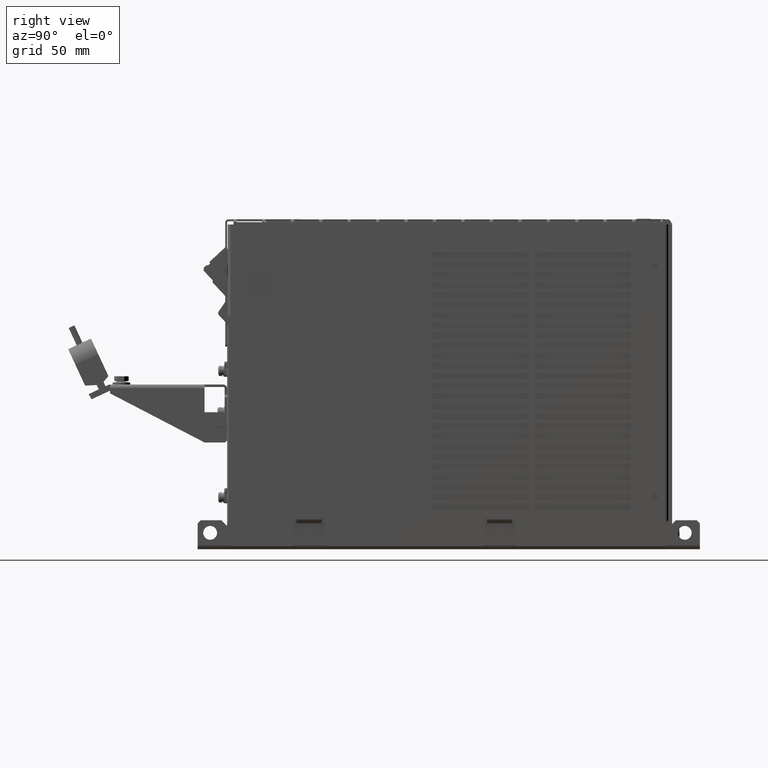
[diagram: clean part render]
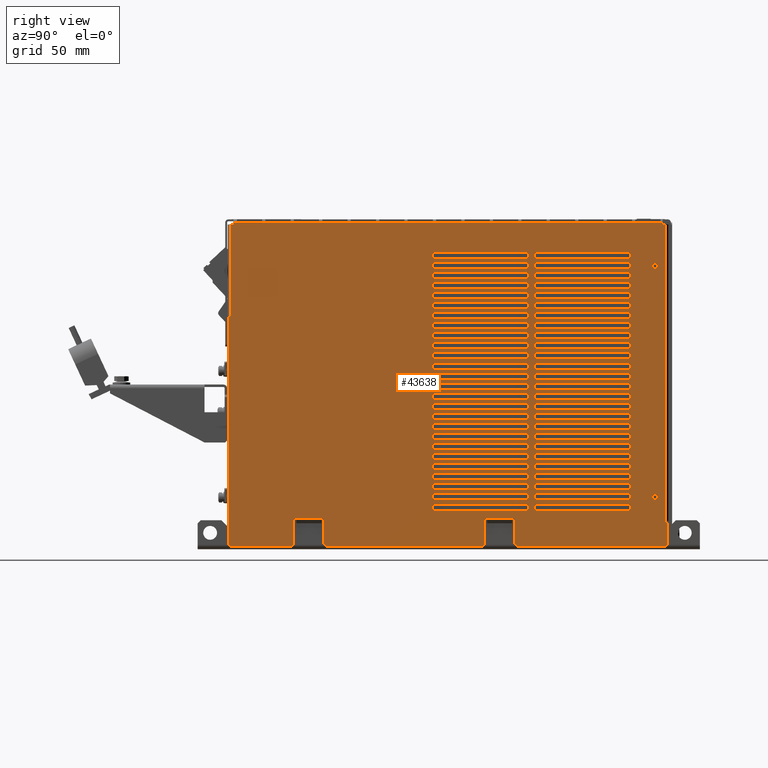
[diagram: same view with one face highlighted and labeled with its STEP entity id]
A machine part, right view. The second image highlights one B-rep face of the part: STEP entity #43638.
In plain terms, the highlighted planar face has unit normal (-1, 0, 0).
Its self-contained STEP definition (entity closure, byte-faithful):
#2409=DIRECTION('',(-5.551115123124E-14,1.E0,2.775557561562E-14));
#2410=VECTOR('',#2409,5.000000000002E-4);
#2411=CARTESIAN_POINT('',(6.5E-2,1.715E-1,2.E-2));
#2412=LINE('',#2411,#2410);
#2435=DIRECTION('',(2.775557561562E-14,-1.E0,0.E0));
#2436=VECTOR('',#2435,2.E-3);
#2437=CARTESIAN_POINT('',(6.5E-2,1.72E-1,2.554E-1));
#2438=LINE('',#2437,#2436);
#2452=DIRECTION('',(0.E0,0.E0,1.E0));
#2453=VECTOR('',#2452,2.354E-1);
#2454=CARTESIAN_POINT('',(6.5E-2,1.72E-1,2.E-2));
#2455=LINE('',#2454,#2453);
#2456=DIRECTION('',(0.E0,-7.071067811865E-1,-7.071067811866E-1));
#2457=VECTOR('',#2456,2.121320343560E-3);
#2458=CARTESIAN_POINT('',(6.5E-2,2.85E-2,1.5E-3));
#2459=LINE('',#2458,#2457);
#2460=DIRECTION('',(0.E0,-7.071067811865E-1,7.071067811866E-1));
#2461=VECTOR('',#2460,2.121320343561E-3);
#2462=CARTESIAN_POINT('',(6.5E-2,-9.75E-2,0.E0));
#2463=LINE('',#2462,#2461);
#2464=DIRECTION('',(0.E0,-7.071067811865E-1,-7.071067811866E-1));
#2465=VECTOR('',#2464,2.121320343560E-3);
#2466=CARTESIAN_POINT('',(6.5E-2,-1.23E-1,1.5E-3));
#2467=LINE('',#2466,#2465);
#2468=DIRECTION('',(0.E0,-7.071067811864E-1,7.071067811867E-1));
#2469=VECTOR('',#2468,2.121320343561E-3);
#2470=CARTESIAN_POINT('',(6.5E-2,-1.735E-1,0.E0));
#2471=LINE('',#2470,#2469);
#2472=DIRECTION('',(0.E0,1.734723475978E-14,1.E0));
#2473=VECTOR('',#2472,1.599999999999E-3);
#2474=CARTESIAN_POINT('',(6.5E-2,-1.71E-1,2.554E-1));
#2475=LINE('',#2474,#2473);
#2476=DIRECTION('',(0.E0,-7.071067811865E-1,-7.071067811866E-1));
#2477=VECTOR('',#2476,2.121320343560E-3);
#2478=CARTESIAN_POINT('',(6.5E-2,1.74E-1,1.5E-3));
#2479=LINE('',#2478,#2477);
#2480=DIRECTION('',(0.E0,-7.071067811864E-1,7.071067811867E-1));
#2481=VECTOR('',#2480,2.121320343561E-3);
#2482=CARTESIAN_POINT('',(6.5E-2,5.4E-2,0.E0));
#2483=LINE('',#2482,#2481);
#2504=DIRECTION('',(0.E0,0.E0,1.E0));
#2505=VECTOR('',#2504,2.05E-2);
#2506=CARTESIAN_POINT('',(6.5E-2,2.85E-2,1.5E-3));
#2507=LINE('',#2506,#2505);
#2520=DIRECTION('',(0.E0,1.E0,0.E0));
#2521=VECTOR('',#2520,2.E-3);
#2522=CARTESIAN_POINT('',(6.5E-2,2.85E-2,2.2E-2));
#2523=LINE('',#2522,#2521);
#2545=DIRECTION('',(0.E0,0.E0,-1.E0));
#2546=VECTOR('',#2545,3.127766070301E-4);
#2547=CARTESIAN_POINT('',(6.5E-2,3.05E-2,2.2E-2));
#2548=LINE('',#2547,#2546);
#2575=DIRECTION('',(0.E0,0.E0,1.E0));
#2576=VECTOR('',#2575,3.127766070300E-4);
#2577=CARTESIAN_POINT('',(6.5E-2,5.05E-2,2.168722339297E-2));
#2578=LINE('',#2577,#2576);
#2596=DIRECTION('',(0.E0,1.E0,0.E0));
#2597=VECTOR('',#2596,2.E-2);
#2598=CARTESIAN_POINT('',(6.5E-2,3.05E-2,2.168722339297E-2));
#2599=LINE('',#2598,#2597);
#2612=DIRECTION('',(0.E0,1.E0,0.E0));
#2613=VECTOR('',#2612,2.E-3);
#2614=CARTESIAN_POINT('',(6.5E-2,5.05E-2,2.2E-2));
#2615=LINE('',#2614,#2613);
#2628=DIRECTION('',(0.E0,0.E0,-1.E0));
#2629=VECTOR('',#2628,2.05E-2);
#2630=CARTESIAN_POINT('',(6.5E-2,5.25E-2,2.2E-2));
#2631=LINE('',#2630,#2629);
#2690=DIRECTION('',(0.E0,0.E0,-1.E0));
#2691=VECTOR('',#2690,1.804E-1);
#2692=CARTESIAN_POINT('',(6.5E-2,-1.75E-1,1.819E-1));
#2693=LINE('',#2692,#2691);
#2694=DIRECTION('',(3.330669073875E-14,-1.E0,0.E0));
#2695=VECTOR('',#2694,2.5E-3);
#2696=CARTESIAN_POINT('',(6.5E-2,-1.725E-1,1.819E-1));
#2697=LINE('',#2696,#2695);
#2706=DIRECTION('',(-8.326672684688E-14,0.E0,-1.E0));
#2707=VECTOR('',#2706,1.E-3);
#2708=CARTESIAN_POINT('',(6.5E-2,-1.725E-1,1.829E-1));
#2709=LINE('',#2708,#2707);
#2736=DIRECTION('',(-5.551115123126E-14,1.E0,0.E0));
#2737=VECTOR('',#2736,5.E-4);
#2738=CARTESIAN_POINT('',(6.5E-2,-1.73E-1,1.829E-1));
#2739=LINE('',#2738,#2737);
#2770=DIRECTION('',(0.E0,-1.E0,0.E0));
#2771=VECTOR('',#2770,2.E-3);
#2772=CARTESIAN_POINT('',(6.5E-2,-1.71E-1,2.554E-1));
#2773=LINE('',#2772,#2771);
#2774=DIRECTION('',(0.E0,0.E0,-1.E0));
#2775=VECTOR('',#2774,7.25E-2);
#2776=CARTESIAN_POINT('',(6.5E-2,-1.73E-1,2.554E-1));
#2777=LINE('',#2776,#2775);
#2872=DIRECTION('',(0.E0,-1.E0,0.E0));
#2873=VECTOR('',#2872,3.41E-1);
#2874=CARTESIAN_POINT('',(6.5E-2,1.7E-1,2.57E-1));
#2875=LINE('',#2874,#2873);
#4185=DIRECTION('',(0.E0,1.E0,0.E0));
#4186=VECTOR('',#4185,4.9E-2);
#4187=CARTESIAN_POINT('',(6.5E-2,-1.735E-1,0.E0));
#4188=LINE('',#4187,#4186);
#4209=DIRECTION('',(0.E0,0.E0,1.E0));
#4210=VECTOR('',#4209,2.05E-2);
#4211=CARTESIAN_POINT('',(6.5E-2,-1.23E-1,1.5E-3));
#4212=LINE('',#4211,#4210);
#4225=DIRECTION('',(0.E0,1.E0,0.E0));
#4226=VECTOR('',#4225,2.E-3);
#4227=CARTESIAN_POINT('',(6.5E-2,-1.23E-1,2.2E-2));
#4228=LINE('',#4227,#4226);
#4250=DIRECTION('',(0.E0,0.E0,-1.E0));
#4251=VECTOR('',#4250,3.127766070301E-4);
#4252=CARTESIAN_POINT('',(6.5E-2,-1.21E-1,2.2E-2));
#4253=LINE('',#4252,#4251);
#4280=DIRECTION('',(0.E0,0.E0,1.E0));
#4281=VECTOR('',#4280,3.127766070300E-4);
#4282=CARTESIAN_POINT('',(6.5E-2,-1.01E-1,2.168722339297E-2));
#4283=LINE('',#4282,#4281);
#4301=DIRECTION('',(0.E0,1.E0,0.E0));
#4302=VECTOR('',#4301,2.E-2);
#4303=CARTESIAN_POINT('',(6.5E-2,-1.21E-1,2.168722339297E-2));
#4304=LINE('',#4303,#4302);
#4317=DIRECTION('',(0.E0,1.E0,0.E0));
#4318=VECTOR('',#4317,2.E-3);
#4319=CARTESIAN_POINT('',(6.5E-2,-1.01E-1,2.2E-2));
#4320=LINE('',#4319,#4318);
#4333=DIRECTION('',(0.E0,0.E0,-1.E0));
#4334=VECTOR('',#4333,2.05E-2);
#4335=CARTESIAN_POINT('',(6.5E-2,-9.9E-2,2.2E-2));
#4336=LINE('',#4335,#4334);
#4345=DIRECTION('',(0.E0,1.E0,0.E0));
#4346=VECTOR('',#4345,1.245E-1);
#4347=CARTESIAN_POINT('',(6.5E-2,-9.75E-2,0.E0));
#4348=LINE('',#4347,#4346);
#14786=DIRECTION('',(0.E0,1.E0,0.E0));
#14787=VECTOR('',#14786,1.185E-1);
#14788=CARTESIAN_POINT('',(6.5E-2,5.4E-2,0.E0));
#14789=LINE('',#14788,#14787);
#14798=DIRECTION('',(0.E0,0.E0,1.E0));
#14799=VECTOR('',#14798,1.75E-2);
#14800=CARTESIAN_POINT('',(6.5E-2,1.74E-1,1.5E-3));
#14801=LINE('',#14800,#14799);
#14806=DIRECTION('',(0.E0,-1.E0,0.E0));
#14807=VECTOR('',#14806,2.5E-3);
#14808=CARTESIAN_POINT('',(6.5E-2,1.74E-1,1.9E-2));
#14809=LINE('',#14808,#14807);
#14818=DIRECTION('',(2.775557561563E-14,0.E0,1.E0));
#14819=VECTOR('',#14818,1.E-3);
#14820=CARTESIAN_POINT('',(6.5E-2,1.715E-1,1.9E-2));
#14821=LINE('',#14820,#14819);
#20115=DIRECTION('',(-5.204170427930E-14,0.E0,1.E0));
#20116=VECTOR('',#20115,1.6E-3);
#20117=CARTESIAN_POINT('',(6.5E-2,1.7E-1,2.554E-1));
#20118=LINE('',#20117,#20116);
#20812=DIRECTION('',(0.E0,-1.E0,0.E0));
#20813=VECTOR('',#20812,7.62E-2);
#20814=CARTESIAN_POINT('',(6.5E-2,1.445E-1,2.285E-1));
#20815=LINE('',#20814,#20813);
#20820=DIRECTION('',(0.E0,0.E0,1.E0));
#20821=VECTOR('',#20820,5.E-3);
#20822=CARTESIAN_POINT('',(6.5E-2,6.83E-2,2.285E-1));
#20823=LINE('',#20822,#20821);
#20836=DIRECTION('',(0.E0,1.E0,0.E0));
#20837=VECTOR('',#20836,7.62E-2);
#20838=CARTESIAN_POINT('',(6.5E-2,6.83E-2,2.335E-1));
#20839=LINE('',#20838,#20837);
#20848=DIRECTION('',(0.E0,0.E0,-1.E0));
#20849=VECTOR('',#20848,5.E-3);
#20850=CARTESIAN_POINT('',(6.5E-2,1.445E-1,2.335E-1));
#20851=LINE('',#20850,#20849);
#20860=DIRECTION('',(0.E0,-1.E0,0.E0));
#20861=VECTOR('',#20860,7.62E-2);
#20862=CARTESIAN_POINT('',(6.5E-2,6.33E-2,2.285E-1));
#20863=LINE('',#20862,#20861);
#20868=DIRECTION('',(0.E0,0.E0,1.E0));
#20869=VECTOR('',#20868,5.E-3);
#20870=CARTESIAN_POINT('',(6.5E-2,-1.29E-2,2.285E-1));
#20871=LINE('',#20870,#20869);
#20884=DIRECTION('',(0.E0,1.E0,0.E0));
#20885=VECTOR('',#20884,7.62E-2);
#20886=CARTESIAN_POINT('',(6.5E-2,-1.29E-2,2.335E-1));
#20887=LINE('',#20886,#20885);
#20896=DIRECTION('',(0.E0,0.E0,-1.E0));
#20897=VECTOR('',#20896,5.E-3);
#20898=CARTESIAN_POINT('',(6.5E-2,6.33E-2,2.335E-1));
#20899=LINE('',#20898,#20897);
#20908=DIRECTION('',(0.E0,-1.E0,0.E0));
#20909=VECTOR('',#20908,7.62E-2);
#20910=CARTESIAN_POINT('',(6.5E-2,6.33E-2,2.045E-1));
#20911=LINE('',#20910,#20909);
#20916=DIRECTION('',(0.E0,0.E0,1.E0));
#20917=VECTOR('',#20916,5.E-3);
#20918=CARTESIAN_POINT('',(6.5E-2,-1.29E-2,2.045E-1));
#20919=LINE('',#20918,#20917);
#20932=DIRECTION('',(0.E0,1.E0,0.E0));
#20933=VECTOR('',#20932,7.62E-2);
#20934=CARTESIAN_POINT('',(6.5E-2,-1.29E-2,2.095E-1));
#20935=LINE('',#20934,#20933);
#20944=DIRECTION('',(0.E0,0.E0,-1.E0));
#20945=VECTOR('',#20944,5.E-3);
#20946=CARTESIAN_POINT('',(6.5E-2,6.33E-2,2.095E-1));
#20947=LINE('',#20946,#20945);
#20956=DIRECTION('',(0.E0,-1.E0,0.E0));
#20957=VECTOR('',#20956,7.62E-2);
#20958=CARTESIAN_POINT('',(6.5E-2,1.445E-1,2.045E-1));
#20959=LINE('',#20958,#20957);
#20964=DIRECTION('',(0.E0,0.E0,1.E0));
#20965=VECTOR('',#20964,5.E-3);
#20966=CARTESIAN_POINT('',(6.5E-2,6.83E-2,2.045E-1));
#20967=LINE('',#20966,#20965);
#20980=DIRECTION('',(0.E0,1.E0,0.E0));
#20981=VECTOR('',#20980,7.62E-2);
#20982=CARTESIAN_POINT('',(6.5E-2,6.83E-2,2.095E-1));
#20983=LINE('',#20982,#20981);
#20992=DIRECTION('',(0.E0,0.E0,-1.E0));
#20993=VECTOR('',#20992,5.E-3);
#20994=CARTESIAN_POINT('',(6.5E-2,1.445E-1,2.095E-1));
#20995=LINE('',#20994,#20993);
#21004=DIRECTION('',(0.E0,-1.E0,0.E0));
#21005=VECTOR('',#21004,7.62E-2);
#21006=CARTESIAN_POINT('',(6.5E-2,6.33E-2,2.125E-1));
#21007=LINE('',#21006,#21005);
#21012=DIRECTION('',(0.E0,0.E0,1.E0));
#21013=VECTOR('',#21012,5.E-3);
#21014=CARTESIAN_POINT('',(6.5E-2,-1.29E-2,2.125E-1));
#21015=LINE('',#21014,#21013);
#21028=DIRECTION('',(0.E0,1.E0,0.E0));
#21029=VECTOR('',#21028,7.62E-2);
#21030=CARTESIAN_POINT('',(6.5E-2,-1.29E-2,2.175E-1));
#21031=LINE('',#21030,#21029);
#21040=DIRECTION('',(0.E0,0.E0,-1.E0));
#21041=VECTOR('',#21040,5.E-3);
#21042=CARTESIAN_POINT('',(6.5E-2,6.33E-2,2.175E-1));
#21043=LINE('',#21042,#21041);
#21052=DIRECTION('',(0.E0,-1.E0,0.E0));
#21053=VECTOR('',#21052,7.62E-2);
#21054=CARTESIAN_POINT('',(6.5E-2,1.445E-1,2.205E-1));
#21055=LINE('',#21054,#21053);
#21060=DIRECTION('',(0.E0,0.E0,1.E0));
#21061=VECTOR('',#21060,5.E-3);
#21062=CARTESIAN_POINT('',(6.5E-2,6.83E-2,2.205E-1));
#21063=LINE('',#21062,#21061);
#21076=DIRECTION('',(0.E0,1.E0,0.E0));
#21077=VECTOR('',#21076,7.62E-2);
#21078=CARTESIAN_POINT('',(6.5E-2,6.83E-2,2.255E-1));
#21079=LINE('',#21078,#21077);
#21088=DIRECTION('',(0.E0,0.E0,-1.E0));
#21089=VECTOR('',#21088,5.E-3);
#21090=CARTESIAN_POINT('',(6.5E-2,1.445E-1,2.255E-1));
#21091=LINE('',#21090,#21089);
#21100=DIRECTION('',(0.E0,-1.E0,0.E0));
#21101=VECTOR('',#21100,7.62E-2);
#21102=CARTESIAN_POINT('',(6.5E-2,6.33E-2,2.205E-1));
#21103=LINE('',#21102,#21101);
#21108=DIRECTION('',(0.E0,0.E0,1.E0));
#21109=VECTOR('',#21108,5.E-3);
#21110=CARTESIAN_POINT('',(6.5E-2,-1.29E-2,2.205E-1));
#21111=LINE('',#21110,#21109);
#21124=DIRECTION('',(0.E0,1.E0,0.E0));
#21125=VECTOR('',#21124,7.62E-2);
#21126=CARTESIAN_POINT('',(6.5E-2,-1.29E-2,2.255E-1));
#21127=LINE('',#21126,#21125);
#21136=DIRECTION('',(0.E0,0.E0,-1.E0));
#21137=VECTOR('',#21136,5.E-3);
#21138=CARTESIAN_POINT('',(6.5E-2,6.33E-2,2.255E-1));
#21139=LINE('',#21138,#21137);
#21148=DIRECTION('',(0.E0,-1.E0,0.E0));
#21149=VECTOR('',#21148,7.62E-2);
#21150=CARTESIAN_POINT('',(6.5E-2,1.445E-1,2.125E-1));
#21151=LINE('',#21150,#21149);
#21156=DIRECTION('',(0.E0,0.E0,1.E0));
#21157=VECTOR('',#21156,5.E-3);
#21158=CARTESIAN_POINT('',(6.5E-2,6.83E-2,2.125E-1));
#21159=LINE('',#21158,#21157);
#21172=DIRECTION('',(0.E0,1.E0,0.E0));
#21173=VECTOR('',#21172,7.62E-2);
#21174=CARTESIAN_POINT('',(6.5E-2,6.83E-2,2.175E-1));
#21175=LINE('',#21174,#21173);
#21184=DIRECTION('',(0.E0,0.E0,-1.E0));
#21185=VECTOR('',#21184,5.E-3);
#21186=CARTESIAN_POINT('',(6.5E-2,1.445E-1,2.175E-1));
#21187=LINE('',#21186,#21185);
#21196=DIRECTION('',(0.E0,-1.E0,0.E0));
#21197=VECTOR('',#21196,7.62E-2);
#21198=CARTESIAN_POINT('',(6.5E-2,6.33E-2,1.805E-1));
#21199=LINE('',#21198,#21197);
#21204=DIRECTION('',(0.E0,0.E0,1.E0));
#21205=VECTOR('',#21204,5.E-3);
#21206=CARTESIAN_POINT('',(6.5E-2,-1.29E-2,1.805E-1));
#21207=LINE('',#21206,#21205);
#21220=DIRECTION('',(0.E0,1.E0,0.E0));
#21221=VECTOR('',#21220,7.62E-2);
#21222=CARTESIAN_POINT('',(6.5E-2,-1.29E-2,1.855E-1));
#21223=LINE('',#21222,#21221);
#21232=DIRECTION('',(0.E0,0.E0,-1.E0));
#21233=VECTOR('',#21232,5.E-3);
#21234=CARTESIAN_POINT('',(6.5E-2,6.33E-2,1.855E-1));
#21235=LINE('',#21234,#21233);
#21244=DIRECTION('',(0.E0,-1.E0,0.E0));
#21245=VECTOR('',#21244,7.62E-2);
#21246=CARTESIAN_POINT('',(6.5E-2,1.445E-1,1.805E-1));
#21247=LINE('',#21246,#21245);
#21252=DIRECTION('',(0.E0,0.E0,1.E0));
#21253=VECTOR('',#21252,5.E-3);
#21254=CARTESIAN_POINT('',(6.5E-2,6.83E-2,1.805E-1));
#21255=LINE('',#21254,#21253);
#21268=DIRECTION('',(0.E0,1.E0,0.E0));
#21269=VECTOR('',#21268,7.62E-2);
#21270=CARTESIAN_POINT('',(6.5E-2,6.83E-2,1.855E-1));
#21271=LINE('',#21270,#21269);
#21280=DIRECTION('',(0.E0,0.E0,-1.E0));
#21281=VECTOR('',#21280,5.E-3);
#21282=CARTESIAN_POINT('',(6.5E-2,1.445E-1,1.855E-1));
#21283=LINE('',#21282,#21281);
#21292=DIRECTION('',(0.E0,-1.E0,0.E0));
#21293=VECTOR('',#21292,7.62E-2);
#21294=CARTESIAN_POINT('',(6.5E-2,6.33E-2,1.885E-1));
#21295=LINE('',#21294,#21293);
#21300=DIRECTION('',(0.E0,0.E0,1.E0));
#21301=VECTOR('',#21300,5.E-3);
#21302=CARTESIAN_POINT('',(6.5E-2,-1.29E-2,1.885E-1));
#21303=LINE('',#21302,#21301);
#21316=DIRECTION('',(0.E0,1.E0,0.E0));
#21317=VECTOR('',#21316,7.62E-2);
#21318=CARTESIAN_POINT('',(6.5E-2,-1.29E-2,1.935E-1));
#21319=LINE('',#21318,#21317);
#21328=DIRECTION('',(0.E0,0.E0,-1.E0));
#21329=VECTOR('',#21328,5.E-3);
#21330=CARTESIAN_POINT('',(6.5E-2,6.33E-2,1.935E-1));
#21331=LINE('',#21330,#21329);
#21340=DIRECTION('',(0.E0,-1.E0,0.E0));
#21341=VECTOR('',#21340,7.62E-2);
#21342=CARTESIAN_POINT('',(6.5E-2,1.445E-1,1.965E-1));
#21343=LINE('',#21342,#21341);
#21348=DIRECTION('',(0.E0,0.E0,1.E0));
#21349=VECTOR('',#21348,5.E-3);
#21350=CARTESIAN_POINT('',(6.5E-2,6.83E-2,1.965E-1));
#21351=LINE('',#21350,#21349);
#21364=DIRECTION('',(0.E0,1.E0,0.E0));
#21365=VECTOR('',#21364,7.62E-2);
#21366=CARTESIAN_POINT('',(6.5E-2,6.83E-2,2.015E-1));
#21367=LINE('',#21366,#21365);
#21376=DIRECTION('',(0.E0,0.E0,-1.E0));
#21377=VECTOR('',#21376,5.E-3);
#21378=CARTESIAN_POINT('',(6.5E-2,1.445E-1,2.015E-1));
#21379=LINE('',#21378,#21377);
#21388=DIRECTION('',(0.E0,-1.E0,0.E0));
#21389=VECTOR('',#21388,7.62E-2);
#21390=CARTESIAN_POINT('',(6.5E-2,6.33E-2,1.965E-1));
#21391=LINE('',#21390,#21389);
#21396=DIRECTION('',(0.E0,0.E0,1.E0));
#21397=VECTOR('',#21396,5.E-3);
#21398=CARTESIAN_POINT('',(6.5E-2,-1.29E-2,1.965E-1));
#21399=LINE('',#21398,#21397);
#21412=DIRECTION('',(0.E0,1.E0,0.E0));
#21413=VECTOR('',#21412,7.62E-2);
#21414=CARTESIAN_POINT('',(6.5E-2,-1.29E-2,2.015E-1));
#21415=LINE('',#21414,#21413);
#21424=DIRECTION('',(0.E0,0.E0,-1.E0));
#21425=VECTOR('',#21424,5.E-3);
#21426=CARTESIAN_POINT('',(6.5E-2,6.33E-2,2.015E-1));
#21427=LINE('',#21426,#21425);
#21436=DIRECTION('',(0.E0,-1.E0,0.E0));
#21437=VECTOR('',#21436,7.62E-2);
#21438=CARTESIAN_POINT('',(6.5E-2,1.445E-1,1.885E-1));
#21439=LINE('',#21438,#21437);
#21444=DIRECTION('',(0.E0,0.E0,1.E0));
#21445=VECTOR('',#21444,5.E-3);
#21446=CARTESIAN_POINT('',(6.5E-2,6.83E-2,1.885E-1));
#21447=LINE('',#21446,#21445);
#21460=DIRECTION('',(0.E0,1.E0,0.E0));
#21461=VECTOR('',#21460,7.62E-2);
#21462=CARTESIAN_POINT('',(6.5E-2,6.83E-2,1.935E-1));
#21463=LINE('',#21462,#21461);
#21472=DIRECTION('',(0.E0,0.E0,-1.E0));
#21473=VECTOR('',#21472,5.E-3);
#21474=CARTESIAN_POINT('',(6.5E-2,1.445E-1,1.935E-1));
#21475=LINE('',#21474,#21473);
#21484=DIRECTION('',(0.E0,-1.E0,0.E0));
#21485=VECTOR('',#21484,7.62E-2);
#21486=CARTESIAN_POINT('',(6.5E-2,6.33E-2,1.565E-1));
#21487=LINE('',#21486,#21485);
#21492=DIRECTION('',(0.E0,0.E0,1.E0));
#21493=VECTOR('',#21492,5.E-3);
#21494=CARTESIAN_POINT('',(6.5E-2,-1.29E-2,1.565E-1));
#21495=LINE('',#21494,#21493);
#21508=DIRECTION('',(0.E0,1.E0,0.E0));
#21509=VECTOR('',#21508,7.62E-2);
#21510=CARTESIAN_POINT('',(6.5E-2,-1.29E-2,1.615E-1));
#21511=LINE('',#21510,#21509);
#21520=DIRECTION('',(0.E0,0.E0,-1.E0));
#21521=VECTOR('',#21520,5.E-3);
#21522=CARTESIAN_POINT('',(6.5E-2,6.33E-2,1.615E-1));
#21523=LINE('',#21522,#21521);
#21532=DIRECTION('',(0.E0,-1.E0,0.E0));
#21533=VECTOR('',#21532,7.62E-2);
#21534=CARTESIAN_POINT('',(6.5E-2,1.445E-1,1.565E-1));
#21535=LINE('',#21534,#21533);
#21540=DIRECTION('',(0.E0,0.E0,1.E0));
#21541=VECTOR('',#21540,5.E-3);
#21542=CARTESIAN_POINT('',(6.5E-2,6.83E-2,1.565E-1));
#21543=LINE('',#21542,#21541);
#21556=DIRECTION('',(0.E0,1.E0,0.E0));
#21557=VECTOR('',#21556,7.62E-2);
#21558=CARTESIAN_POINT('',(6.5E-2,6.83E-2,1.615E-1));
#21559=LINE('',#21558,#21557);
#21568=DIRECTION('',(0.E0,0.E0,-1.E0));
#21569=VECTOR('',#21568,5.E-3);
#21570=CARTESIAN_POINT('',(6.5E-2,1.445E-1,1.615E-1));
#21571=LINE('',#21570,#21569);
#21580=DIRECTION('',(0.E0,-1.E0,0.E0));
#21581=VECTOR('',#21580,7.62E-2);
#21582=CARTESIAN_POINT('',(6.5E-2,6.33E-2,1.645E-1));
#21583=LINE('',#21582,#21581);
#21588=DIRECTION('',(0.E0,0.E0,1.E0));
#21589=VECTOR('',#21588,5.E-3);
#21590=CARTESIAN_POINT('',(6.5E-2,-1.29E-2,1.645E-1));
#21591=LINE('',#21590,#21589);
#21604=DIRECTION('',(0.E0,1.E0,0.E0));
#21605=VECTOR('',#21604,7.62E-2);
#21606=CARTESIAN_POINT('',(6.5E-2,-1.29E-2,1.695E-1));
#21607=LINE('',#21606,#21605);
#21616=DIRECTION('',(0.E0,0.E0,-1.E0));
#21617=VECTOR('',#21616,5.E-3);
#21618=CARTESIAN_POINT('',(6.5E-2,6.33E-2,1.695E-1));
#21619=LINE('',#21618,#21617);
#21628=DIRECTION('',(0.E0,-1.E0,0.E0));
#21629=VECTOR('',#21628,7.62E-2);
#21630=CARTESIAN_POINT('',(6.5E-2,1.445E-1,1.725E-1));
#21631=LINE('',#21630,#21629);
#21636=DIRECTION('',(0.E0,0.E0,1.E0));
#21637=VECTOR('',#21636,5.E-3);
#21638=CARTESIAN_POINT('',(6.5E-2,6.83E-2,1.725E-1));
#21639=LINE('',#21638,#21637);
#21652=DIRECTION('',(0.E0,1.E0,0.E0));
#21653=VECTOR('',#21652,7.62E-2);
#21654=CARTESIAN_POINT('',(6.5E-2,6.83E-2,1.775E-1));
#21655=LINE('',#21654,#21653);
#21664=DIRECTION('',(0.E0,0.E0,-1.E0));
#21665=VECTOR('',#21664,5.E-3);
#21666=CARTESIAN_POINT('',(6.5E-2,1.445E-1,1.775E-1));
#21667=LINE('',#21666,#21665);
#21676=DIRECTION('',(0.E0,-1.E0,0.E0));
#21677=VECTOR('',#21676,7.62E-2);
#21678=CARTESIAN_POINT('',(6.5E-2,6.33E-2,1.725E-1));
#21679=LINE('',#21678,#21677);
#21684=DIRECTION('',(0.E0,0.E0,1.E0));
#21685=VECTOR('',#21684,5.E-3);
#21686=CARTESIAN_POINT('',(6.5E-2,-1.29E-2,1.725E-1));
#21687=LINE('',#21686,#21685);
#21700=DIRECTION('',(0.E0,1.E0,0.E0));
#21701=VECTOR('',#21700,7.62E-2);
#21702=CARTESIAN_POINT('',(6.5E-2,-1.29E-2,1.775E-1));
#21703=LINE('',#21702,#21701);
#21712=DIRECTION('',(0.E0,0.E0,-1.E0));
#21713=VECTOR('',#21712,5.E-3);
#21714=CARTESIAN_POINT('',(6.5E-2,6.33E-2,1.775E-1));
#21715=LINE('',#21714,#21713);
#21724=DIRECTION('',(0.E0,-1.E0,0.E0));
#21725=VECTOR('',#21724,7.62E-2);
#21726=CARTESIAN_POINT('',(6.5E-2,1.445E-1,1.645E-1));
#21727=LINE('',#21726,#21725);
#21732=DIRECTION('',(0.E0,0.E0,1.E0));
#21733=VECTOR('',#21732,5.E-3);
#21734=CARTESIAN_POINT('',(6.5E-2,6.83E-2,1.645E-1));
#21735=LINE('',#21734,#21733);
#21748=DIRECTION('',(0.E0,1.E0,0.E0));
#21749=VECTOR('',#21748,7.62E-2);
#21750=CARTESIAN_POINT('',(6.5E-2,6.83E-2,1.695E-1));
#21751=LINE('',#21750,#21749);
#21760=DIRECTION('',(0.E0,0.E0,-1.E0));
#21761=VECTOR('',#21760,5.E-3);
#21762=CARTESIAN_POINT('',(6.5E-2,1.445E-1,1.695E-1));
#21763=LINE('',#21762,#21761);
#21772=DIRECTION('',(0.E0,-1.E0,0.E0));
#21773=VECTOR('',#21772,7.62E-2);
#21774=CARTESIAN_POINT('',(6.5E-2,6.33E-2,1.405E-1));
#21775=LINE('',#21774,#21773);
#21780=DIRECTION('',(0.E0,0.E0,1.E0));
#21781=VECTOR('',#21780,5.E-3);
#21782=CARTESIAN_POINT('',(6.5E-2,-1.29E-2,1.405E-1));
#21783=LINE('',#21782,#21781);
#21796=DIRECTION('',(0.E0,1.E0,0.E0));
#21797=VECTOR('',#21796,7.62E-2);
#21798=CARTESIAN_POINT('',(6.5E-2,-1.29E-2,1.455E-1));
#21799=LINE('',#21798,#21797);
#21808=DIRECTION('',(0.E0,0.E0,-1.E0));
#21809=VECTOR('',#21808,5.E-3);
#21810=CARTESIAN_POINT('',(6.5E-2,6.33E-2,1.455E-1));
#21811=LINE('',#21810,#21809);
#21820=DIRECTION('',(0.E0,-1.E0,0.E0));
#21821=VECTOR('',#21820,7.62E-2);
#21822=CARTESIAN_POINT('',(6.5E-2,1.445E-1,1.325E-1));
#21823=LINE('',#21822,#21821);
#21828=DIRECTION('',(0.E0,0.E0,1.E0));
#21829=VECTOR('',#21828,5.E-3);
#21830=CARTESIAN_POINT('',(6.5E-2,6.83E-2,1.325E-1));
#21831=LINE('',#21830,#21829);
#21844=DIRECTION('',(0.E0,1.E0,0.E0));
#21845=VECTOR('',#21844,7.62E-2);
#21846=CARTESIAN_POINT('',(6.5E-2,6.83E-2,1.375E-1));
#21847=LINE('',#21846,#21845);
#21856=DIRECTION('',(0.E0,0.E0,-1.E0));
#21857=VECTOR('',#21856,5.E-3);
#21858=CARTESIAN_POINT('',(6.5E-2,1.445E-1,1.375E-1));
#21859=LINE('',#21858,#21857);
#21868=DIRECTION('',(0.E0,-1.E0,0.E0));
#21869=VECTOR('',#21868,7.62E-2);
#21870=CARTESIAN_POINT('',(6.5E-2,6.33E-2,1.325E-1));
#21871=LINE('',#21870,#21869);
#21876=DIRECTION('',(0.E0,0.E0,1.E0));
#21877=VECTOR('',#21876,5.E-3);
#21878=CARTESIAN_POINT('',(6.5E-2,-1.29E-2,1.325E-1));
#21879=LINE('',#21878,#21877);
#21892=DIRECTION('',(0.E0,1.E0,0.E0));
#21893=VECTOR('',#21892,7.62E-2);
#21894=CARTESIAN_POINT('',(6.5E-2,-1.29E-2,1.375E-1));
#21895=LINE('',#21894,#21893);
#21904=DIRECTION('',(0.E0,0.E0,-1.E0));
#21905=VECTOR('',#21904,5.E-3);
#21906=CARTESIAN_POINT('',(6.5E-2,6.33E-2,1.375E-1));
#21907=LINE('',#21906,#21905);
#21916=DIRECTION('',(0.E0,-1.E0,0.E0));
#21917=VECTOR('',#21916,7.62E-2);
#21918=CARTESIAN_POINT('',(6.5E-2,1.445E-1,1.245E-1));
#21919=LINE('',#21918,#21917);
#21924=DIRECTION('',(0.E0,0.E0,1.E0));
#21925=VECTOR('',#21924,5.E-3);
#21926=CARTESIAN_POINT('',(6.5E-2,6.83E-2,1.245E-1));
#21927=LINE('',#21926,#21925);
#21940=DIRECTION('',(0.E0,1.E0,0.E0));
#21941=VECTOR('',#21940,7.62E-2);
#21942=CARTESIAN_POINT('',(6.5E-2,6.83E-2,1.295E-1));
#21943=LINE('',#21942,#21941);
#21952=DIRECTION('',(0.E0,0.E0,-1.E0));
#21953=VECTOR('',#21952,5.E-3);
#21954=CARTESIAN_POINT('',(6.5E-2,1.445E-1,1.295E-1));
#21955=LINE('',#21954,#21953);
#21964=DIRECTION('',(0.E0,-1.E0,0.E0));
#21965=VECTOR('',#21964,7.62E-2);
#21966=CARTESIAN_POINT('',(6.5E-2,1.445E-1,1.485E-1));
#21967=LINE('',#21966,#21965);
#21972=DIRECTION('',(0.E0,0.E0,1.E0));
#21973=VECTOR('',#21972,5.E-3);
#21974=CARTESIAN_POINT('',(6.5E-2,6.83E-2,1.485E-1));
#21975=LINE('',#21974,#21973);
#21988=DIRECTION('',(0.E0,1.E0,0.E0));
#21989=VECTOR('',#21988,7.62E-2);
#21990=CARTESIAN_POINT('',(6.5E-2,6.83E-2,1.535E-1));
#21991=LINE('',#21990,#21989);
#22000=DIRECTION('',(0.E0,0.E0,-1.E0));
#22001=VECTOR('',#22000,5.E-3);
#22002=CARTESIAN_POINT('',(6.5E-2,1.445E-1,1.535E-1));
#22003=LINE('',#22002,#22001);
#22012=DIRECTION('',(0.E0,-1.E0,0.E0));
#22013=VECTOR('',#22012,7.62E-2);
#22014=CARTESIAN_POINT('',(6.5E-2,6.33E-2,1.485E-1));
#22015=LINE('',#22014,#22013);
#22020=DIRECTION('',(0.E0,0.E0,1.E0));
#22021=VECTOR('',#22020,5.E-3);
#22022=CARTESIAN_POINT('',(6.5E-2,-1.29E-2,1.485E-1));
#22023=LINE('',#22022,#22021);
#22036=DIRECTION('',(0.E0,1.E0,0.E0));
#22037=VECTOR('',#22036,7.62E-2);
#22038=CARTESIAN_POINT('',(6.5E-2,-1.29E-2,1.535E-1));
#22039=LINE('',#22038,#22037);
#22048=DIRECTION('',(0.E0,0.E0,-1.E0));
#22049=VECTOR('',#22048,5.E-3);
#22050=CARTESIAN_POINT('',(6.5E-2,6.33E-2,1.535E-1));
#22051=LINE('',#22050,#22049);
#22060=DIRECTION('',(0.E0,-1.E0,0.E0));
#22061=VECTOR('',#22060,7.62E-2);
#22062=CARTESIAN_POINT('',(6.5E-2,1.445E-1,1.405E-1));
#22063=LINE('',#22062,#22061);
#22068=DIRECTION('',(0.E0,0.E0,1.E0));
#22069=VECTOR('',#22068,5.E-3);
#22070=CARTESIAN_POINT('',(6.5E-2,6.83E-2,1.405E-1));
#22071=LINE('',#22070,#22069);
#22084=DIRECTION('',(0.E0,1.E0,0.E0));
#22085=VECTOR('',#22084,7.62E-2);
#22086=CARTESIAN_POINT('',(6.5E-2,6.83E-2,1.455E-1));
#22087=LINE('',#22086,#22085);
#22096=DIRECTION('',(0.E0,0.E0,-1.E0));
#22097=VECTOR('',#22096,5.E-3);
#22098=CARTESIAN_POINT('',(6.5E-2,1.445E-1,1.455E-1));
#22099=LINE('',#22098,#22097);
#22108=DIRECTION('',(0.E0,-1.E0,0.E0));
#22109=VECTOR('',#22108,7.62E-2);
#22110=CARTESIAN_POINT('',(6.5E-2,6.33E-2,7.65E-2));
#22111=LINE('',#22110,#22109);
#22116=DIRECTION('',(0.E0,0.E0,1.E0));
#22117=VECTOR('',#22116,5.E-3);
#22118=CARTESIAN_POINT('',(6.5E-2,-1.29E-2,7.65E-2));
#22119=LINE('',#22118,#22117);
#22132=DIRECTION('',(0.E0,1.E0,0.E0));
#22133=VECTOR('',#22132,7.62E-2);
#22134=CARTESIAN_POINT('',(6.5E-2,-1.29E-2,8.15E-2));
#22135=LINE('',#22134,#22133);
#22144=DIRECTION('',(0.E0,0.E0,-1.E0));
#22145=VECTOR('',#22144,5.E-3);
#22146=CARTESIAN_POINT('',(6.5E-2,6.33E-2,8.15E-2));
#22147=LINE('',#22146,#22145);
#22156=DIRECTION('',(0.E0,-1.E0,0.E0));
#22157=VECTOR('',#22156,7.62E-2);
#22158=CARTESIAN_POINT('',(6.5E-2,1.445E-1,6.85E-2));
#22159=LINE('',#22158,#22157);
#22164=DIRECTION('',(0.E0,0.E0,1.E0));
#22165=VECTOR('',#22164,5.E-3);
#22166=CARTESIAN_POINT('',(6.5E-2,6.83E-2,6.85E-2));
#22167=LINE('',#22166,#22165);
#22180=DIRECTION('',(0.E0,1.E0,0.E0));
#22181=VECTOR('',#22180,7.62E-2);
#22182=CARTESIAN_POINT('',(6.5E-2,6.83E-2,7.35E-2));
#22183=LINE('',#22182,#22181);
#22192=DIRECTION('',(0.E0,0.E0,-1.E0));
#22193=VECTOR('',#22192,5.E-3);
#22194=CARTESIAN_POINT('',(6.5E-2,1.445E-1,7.35E-2));
#22195=LINE('',#22194,#22193);
#22204=DIRECTION('',(0.E0,-1.E0,0.E0));
#22205=VECTOR('',#22204,7.62E-2);
#22206=CARTESIAN_POINT('',(6.5E-2,6.33E-2,6.85E-2));
#22207=LINE('',#22206,#22205);
#22212=DIRECTION('',(0.E0,0.E0,1.E0));
#22213=VECTOR('',#22212,5.E-3);
#22214=CARTESIAN_POINT('',(6.5E-2,-1.29E-2,6.85E-2));
#22215=LINE('',#22214,#22213);
#22228=DIRECTION('',(0.E0,1.E0,0.E0));
#22229=VECTOR('',#22228,7.62E-2);
#22230=CARTESIAN_POINT('',(6.5E-2,-1.29E-2,7.35E-2));
#22231=LINE('',#22230,#22229);
#22240=DIRECTION('',(0.E0,0.E0,-1.E0));
#22241=VECTOR('',#22240,5.E-3);
#22242=CARTESIAN_POINT('',(6.5E-2,6.33E-2,7.35E-2));
#22243=LINE('',#22242,#22241);
#22252=DIRECTION('',(0.E0,-1.E0,0.E0));
#22253=VECTOR('',#22252,7.62E-2);
#22254=CARTESIAN_POINT('',(6.5E-2,1.445E-1,5.25E-2));
#22255=LINE('',#22254,#22253);
#22260=DIRECTION('',(0.E0,0.E0,1.E0));
#22261=VECTOR('',#22260,5.E-3);
#22262=CARTESIAN_POINT('',(6.5E-2,6.83E-2,5.25E-2));
#22263=LINE('',#22262,#22261);
#22276=DIRECTION('',(0.E0,1.E0,0.E0));
#22277=VECTOR('',#22276,7.62E-2);
#22278=CARTESIAN_POINT('',(6.5E-2,6.83E-2,5.75E-2));
#22279=LINE('',#22278,#22277);
#22288=DIRECTION('',(0.E0,0.E0,-1.E0));
#22289=VECTOR('',#22288,5.E-3);
#22290=CARTESIAN_POINT('',(6.5E-2,1.445E-1,5.75E-2));
#22291=LINE('',#22290,#22289);
#22300=DIRECTION('',(0.E0,-1.E0,0.E0));
#22301=VECTOR('',#22300,7.62E-2);
#22302=CARTESIAN_POINT('',(6.5E-2,6.33E-2,6.05E-2));
#22303=LINE('',#22302,#22301);
#22308=DIRECTION('',(0.E0,0.E0,1.E0));
#22309=VECTOR('',#22308,5.E-3);
#22310=CARTESIAN_POINT('',(6.5E-2,-1.29E-2,6.05E-2));
#22311=LINE('',#22310,#22309);
#22324=DIRECTION('',(0.E0,1.E0,0.E0));
#22325=VECTOR('',#22324,7.62E-2);
#22326=CARTESIAN_POINT('',(6.5E-2,-1.29E-2,6.55E-2));
#22327=LINE('',#22326,#22325);
#22336=DIRECTION('',(0.E0,0.E0,-1.E0));
#22337=VECTOR('',#22336,5.E-3);
#22338=CARTESIAN_POINT('',(6.5E-2,6.33E-2,6.55E-2));
#22339=LINE('',#22338,#22337);
#22348=DIRECTION('',(0.E0,-1.E0,0.E0));
#22349=VECTOR('',#22348,7.62E-2);
#22350=CARTESIAN_POINT('',(6.5E-2,1.445E-1,6.05E-2));
#22351=LINE('',#22350,#22349);
#22356=DIRECTION('',(0.E0,0.E0,1.E0));
#22357=VECTOR('',#22356,5.E-3);
#22358=CARTESIAN_POINT('',(6.5E-2,6.83E-2,6.05E-2));
#22359=LINE('',#22358,#22357);
#22372=DIRECTION('',(0.E0,1.E0,0.E0));
#22373=VECTOR('',#22372,7.62E-2);
#22374=CARTESIAN_POINT('',(6.5E-2,6.83E-2,6.55E-2));
#22375=LINE('',#22374,#22373);
#22384=DIRECTION('',(0.E0,0.E0,-1.E0));
#22385=VECTOR('',#22384,5.E-3);
#22386=CARTESIAN_POINT('',(6.5E-2,1.445E-1,6.55E-2));
#22387=LINE('',#22386,#22385);
#22396=DIRECTION('',(0.E0,-1.E0,0.E0));
#22397=VECTOR('',#22396,7.62E-2);
#22398=CARTESIAN_POINT('',(6.5E-2,6.33E-2,5.25E-2));
#22399=LINE('',#22398,#22397);
#22404=DIRECTION('',(0.E0,0.E0,1.E0));
#22405=VECTOR('',#22404,5.E-3);
#22406=CARTESIAN_POINT('',(6.5E-2,-1.29E-2,5.25E-2));
#22407=LINE('',#22406,#22405);
#22420=DIRECTION('',(0.E0,1.E0,0.E0));
#22421=VECTOR('',#22420,7.62E-2);
#22422=CARTESIAN_POINT('',(6.5E-2,-1.29E-2,5.75E-2));
#22423=LINE('',#22422,#22421);
#22432=DIRECTION('',(0.E0,0.E0,-1.E0));
#22433=VECTOR('',#22432,5.E-3);
#22434=CARTESIAN_POINT('',(6.5E-2,6.33E-2,5.75E-2));
#22435=LINE('',#22434,#22433);
#22444=DIRECTION('',(0.E0,-1.E0,0.E0));
#22445=VECTOR('',#22444,7.62E-2);
#22446=CARTESIAN_POINT('',(6.5E-2,1.445E-1,4.45E-2));
#22447=LINE('',#22446,#22445);
#22452=DIRECTION('',(0.E0,0.E0,1.E0));
#22453=VECTOR('',#22452,5.E-3);
#22454=CARTESIAN_POINT('',(6.5E-2,6.83E-2,4.45E-2));
#22455=LINE('',#22454,#22453);
#22468=DIRECTION('',(0.E0,1.E0,0.E0));
#22469=VECTOR('',#22468,7.62E-2);
#22470=CARTESIAN_POINT('',(6.5E-2,6.83E-2,4.95E-2));
#22471=LINE('',#22470,#22469);
#22480=DIRECTION('',(0.E0,0.E0,-1.E0));
#22481=VECTOR('',#22480,5.E-3);
#22482=CARTESIAN_POINT('',(6.5E-2,1.445E-1,4.95E-2));
#22483=LINE('',#22482,#22481);
#22492=DIRECTION('',(0.E0,-1.E0,0.E0));
#22493=VECTOR('',#22492,7.62E-2);
#22494=CARTESIAN_POINT('',(6.5E-2,6.33E-2,4.45E-2));
#22495=LINE('',#22494,#22493);
#22500=DIRECTION('',(0.E0,0.E0,1.E0));
#22501=VECTOR('',#22500,5.E-3);
#22502=CARTESIAN_POINT('',(6.5E-2,-1.29E-2,4.45E-2));
#22503=LINE('',#22502,#22501);
#22516=DIRECTION('',(0.E0,1.E0,0.E0));
#22517=VECTOR('',#22516,7.62E-2);
#22518=CARTESIAN_POINT('',(6.5E-2,-1.29E-2,4.95E-2));
#22519=LINE('',#22518,#22517);
#22528=DIRECTION('',(0.E0,0.E0,-1.E0));
#22529=VECTOR('',#22528,5.E-3);
#22530=CARTESIAN_POINT('',(6.5E-2,6.33E-2,4.95E-2));
#22531=LINE('',#22530,#22529);
#22540=DIRECTION('',(0.E0,-1.E0,0.E0));
#22541=VECTOR('',#22540,7.62E-2);
#22542=CARTESIAN_POINT('',(6.5E-2,1.445E-1,3.65E-2));
#22543=LINE('',#22542,#22541);
#22548=DIRECTION('',(0.E0,0.E0,1.E0));
#22549=VECTOR('',#22548,5.E-3);
#22550=CARTESIAN_POINT('',(6.5E-2,6.83E-2,3.65E-2));
#22551=LINE('',#22550,#22549);
#22564=DIRECTION('',(0.E0,1.E0,0.E0));
#22565=VECTOR('',#22564,7.62E-2);
#22566=CARTESIAN_POINT('',(6.5E-2,6.83E-2,4.15E-2));
#22567=LINE('',#22566,#22565);
#22576=DIRECTION('',(0.E0,0.E0,-1.E0));
#22577=VECTOR('',#22576,5.E-3);
#22578=CARTESIAN_POINT('',(6.5E-2,1.445E-1,4.15E-2));
#22579=LINE('',#22578,#22577);
#22588=DIRECTION('',(0.E0,-1.E0,0.E0));
#22589=VECTOR('',#22588,7.62E-2);
#22590=CARTESIAN_POINT('',(6.5E-2,6.33E-2,3.65E-2));
#22591=LINE('',#22590,#22589);
#22596=DIRECTION('',(0.E0,0.E0,1.E0));
#22597=VECTOR('',#22596,5.E-3);
#22598=CARTESIAN_POINT('',(6.5E-2,-1.29E-2,3.65E-2));
#22599=LINE('',#22598,#22597);
#22612=DIRECTION('',(0.E0,1.E0,0.E0));
#22613=VECTOR('',#22612,7.62E-2);
#22614=CARTESIAN_POINT('',(6.5E-2,-1.29E-2,4.15E-2));
#22615=LINE('',#22614,#22613);
#22624=DIRECTION('',(0.E0,0.E0,-1.E0));
#22625=VECTOR('',#22624,5.E-3);
#22626=CARTESIAN_POINT('',(6.5E-2,6.33E-2,4.15E-2));
#22627=LINE('',#22626,#22625);
#22636=DIRECTION('',(0.E0,-1.E0,0.E0));
#22637=VECTOR('',#22636,7.62E-2);
#22638=CARTESIAN_POINT('',(6.5E-2,1.445E-1,2.85E-2));
#22639=LINE('',#22638,#22637);
#22644=DIRECTION('',(0.E0,0.E0,1.E0));
#22645=VECTOR('',#22644,5.E-3);
#22646=CARTESIAN_POINT('',(6.5E-2,6.83E-2,2.85E-2));
#22647=LINE('',#22646,#22645);
#22660=DIRECTION('',(0.E0,1.E0,0.E0));
#22661=VECTOR('',#22660,7.62E-2);
#22662=CARTESIAN_POINT('',(6.5E-2,6.83E-2,3.35E-2));
#22663=LINE('',#22662,#22661);
#22672=DIRECTION('',(0.E0,0.E0,-1.E0));
#22673=VECTOR('',#22672,5.E-3);
#22674=CARTESIAN_POINT('',(6.5E-2,1.445E-1,3.35E-2));
#22675=LINE('',#22674,#22673);
#22684=DIRECTION('',(0.E0,-1.E0,0.E0));
#22685=VECTOR('',#22684,7.62E-2);
#22686=CARTESIAN_POINT('',(6.5E-2,6.33E-2,2.85E-2));
#22687=LINE('',#22686,#22685);
#22692=DIRECTION('',(0.E0,0.E0,1.E0));
#22693=VECTOR('',#22692,5.E-3);
#22694=CARTESIAN_POINT('',(6.5E-2,-1.29E-2,2.85E-2));
#22695=LINE('',#22694,#22693);
#22708=DIRECTION('',(0.E0,1.E0,0.E0));
#22709=VECTOR('',#22708,7.62E-2);
#22710=CARTESIAN_POINT('',(6.5E-2,-1.29E-2,3.35E-2));
#22711=LINE('',#22710,#22709);
#22720=DIRECTION('',(0.E0,0.E0,-1.E0));
#22721=VECTOR('',#22720,5.E-3);
#22722=CARTESIAN_POINT('',(6.5E-2,6.33E-2,3.35E-2));
#22723=LINE('',#22722,#22721);
#22732=DIRECTION('',(0.E0,-1.E0,0.E0));
#22733=VECTOR('',#22732,7.62E-2);
#22734=CARTESIAN_POINT('',(6.5E-2,6.33E-2,1.245E-1));
#22735=LINE('',#22734,#22733);
#22740=DIRECTION('',(0.E0,0.E0,1.E0));
#22741=VECTOR('',#22740,5.E-3);
#22742=CARTESIAN_POINT('',(6.5E-2,-1.29E-2,1.245E-1));
#22743=LINE('',#22742,#22741);
#22756=DIRECTION('',(0.E0,1.E0,0.E0));
#22757=VECTOR('',#22756,7.62E-2);
#22758=CARTESIAN_POINT('',(6.5E-2,-1.29E-2,1.295E-1));
#22759=LINE('',#22758,#22757);
#22768=DIRECTION('',(0.E0,0.E0,-1.E0));
#22769=VECTOR('',#22768,5.E-3);
#22770=CARTESIAN_POINT('',(6.5E-2,6.33E-2,1.295E-1));
#22771=LINE('',#22770,#22769);
#22780=DIRECTION('',(0.E0,-1.E0,0.E0));
#22781=VECTOR('',#22780,7.62E-2);
#22782=CARTESIAN_POINT('',(6.5E-2,1.445E-1,1.165E-1));
#22783=LINE('',#22782,#22781);
#22788=DIRECTION('',(0.E0,0.E0,1.E0));
#22789=VECTOR('',#22788,5.E-3);
#22790=CARTESIAN_POINT('',(6.5E-2,6.83E-2,1.165E-1));
#22791=LINE('',#22790,#22789);
#22804=DIRECTION('',(0.E0,1.E0,0.E0));
#22805=VECTOR('',#22804,7.62E-2);
#22806=CARTESIAN_POINT('',(6.5E-2,6.83E-2,1.215E-1));
#22807=LINE('',#22806,#22805);
#22816=DIRECTION('',(0.E0,0.E0,-1.E0));
#22817=VECTOR('',#22816,5.E-3);
#22818=CARTESIAN_POINT('',(6.5E-2,1.445E-1,1.215E-1));
#22819=LINE('',#22818,#22817);
#22828=DIRECTION('',(0.E0,-1.E0,0.E0));
#22829=VECTOR('',#22828,7.62E-2);
#22830=CARTESIAN_POINT('',(6.5E-2,6.33E-2,1.165E-1));
#22831=LINE('',#22830,#22829);
#22836=DIRECTION('',(0.E0,0.E0,1.E0));
#22837=VECTOR('',#22836,5.E-3);
#22838=CARTESIAN_POINT('',(6.5E-2,-1.29E-2,1.165E-1));
#22839=LINE('',#22838,#22837);
#22852=DIRECTION('',(0.E0,1.E0,0.E0));
#22853=VECTOR('',#22852,7.62E-2);
#22854=CARTESIAN_POINT('',(6.5E-2,-1.29E-2,1.215E-1));
#22855=LINE('',#22854,#22853);
#22864=DIRECTION('',(0.E0,0.E0,-1.E0));
#22865=VECTOR('',#22864,5.E-3);
#22866=CARTESIAN_POINT('',(6.5E-2,6.33E-2,1.215E-1));
#22867=LINE('',#22866,#22865);
#22876=DIRECTION('',(0.E0,-1.E0,0.E0));
#22877=VECTOR('',#22876,7.62E-2);
#22878=CARTESIAN_POINT('',(6.5E-2,1.445E-1,1.005E-1));
#22879=LINE('',#22878,#22877);
#22884=DIRECTION('',(0.E0,0.E0,1.E0));
#22885=VECTOR('',#22884,5.E-3);
#22886=CARTESIAN_POINT('',(6.5E-2,6.83E-2,1.005E-1));
#22887=LINE('',#22886,#22885);
#22900=DIRECTION('',(0.E0,1.E0,0.E0));
#22901=VECTOR('',#22900,7.62E-2);
#22902=CARTESIAN_POINT('',(6.5E-2,6.83E-2,1.055E-1));
#22903=LINE('',#22902,#22901);
#22912=DIRECTION('',(0.E0,0.E0,-1.E0));
#22913=VECTOR('',#22912,5.E-3);
#22914=CARTESIAN_POINT('',(6.5E-2,1.445E-1,1.055E-1));
#22915=LINE('',#22914,#22913);
#22924=DIRECTION('',(0.E0,-1.E0,0.E0));
#22925=VECTOR('',#22924,7.62E-2);
#22926=CARTESIAN_POINT('',(6.5E-2,6.33E-2,1.085E-1));
#22927=LINE('',#22926,#22925);
#22932=DIRECTION('',(0.E0,0.E0,1.E0));
#22933=VECTOR('',#22932,5.E-3);
#22934=CARTESIAN_POINT('',(6.5E-2,-1.29E-2,1.085E-1));
#22935=LINE('',#22934,#22933);
#22948=DIRECTION('',(0.E0,1.E0,0.E0));
#22949=VECTOR('',#22948,7.62E-2);
#22950=CARTESIAN_POINT('',(6.5E-2,-1.29E-2,1.135E-1));
#22951=LINE('',#22950,#22949);
#22960=DIRECTION('',(0.E0,0.E0,-1.E0));
#22961=VECTOR('',#22960,5.E-3);
#22962=CARTESIAN_POINT('',(6.5E-2,6.33E-2,1.135E-1));
#22963=LINE('',#22962,#22961);
#22972=DIRECTION('',(0.E0,-1.E0,0.E0));
#22973=VECTOR('',#22972,7.62E-2);
#22974=CARTESIAN_POINT('',(6.5E-2,1.445E-1,1.085E-1));
#22975=LINE('',#22974,#22973);
#22980=DIRECTION('',(0.E0,0.E0,1.E0));
#22981=VECTOR('',#22980,5.E-3);
#22982=CARTESIAN_POINT('',(6.5E-2,6.83E-2,1.085E-1));
#22983=LINE('',#22982,#22981);
#22996=DIRECTION('',(0.E0,1.E0,0.E0));
#22997=VECTOR('',#22996,7.62E-2);
#22998=CARTESIAN_POINT('',(6.5E-2,6.83E-2,1.135E-1));
#22999=LINE('',#22998,#22997);
#23008=DIRECTION('',(0.E0,0.E0,-1.E0));
#23009=VECTOR('',#23008,5.E-3);
#23010=CARTESIAN_POINT('',(6.5E-2,1.445E-1,1.135E-1));
#23011=LINE('',#23010,#23009);
#23020=DIRECTION('',(0.E0,-1.E0,0.E0));
#23021=VECTOR('',#23020,7.62E-2);
#23022=CARTESIAN_POINT('',(6.5E-2,6.33E-2,1.005E-1));
#23023=LINE('',#23022,#23021);
#23028=DIRECTION('',(0.E0,0.E0,1.E0));
#23029=VECTOR('',#23028,5.E-3);
#23030=CARTESIAN_POINT('',(6.5E-2,-1.29E-2,1.005E-1));
#23031=LINE('',#23030,#23029);
#23044=DIRECTION('',(0.E0,1.E0,0.E0));
#23045=VECTOR('',#23044,7.62E-2);
#23046=CARTESIAN_POINT('',(6.5E-2,-1.29E-2,1.055E-1));
#23047=LINE('',#23046,#23045);
#23056=DIRECTION('',(0.E0,0.E0,-1.E0));
#23057=VECTOR('',#23056,5.E-3);
#23058=CARTESIAN_POINT('',(6.5E-2,6.33E-2,1.055E-1));
#23059=LINE('',#23058,#23057);
#23068=DIRECTION('',(0.E0,-1.E0,0.E0));
#23069=VECTOR('',#23068,7.62E-2);
#23070=CARTESIAN_POINT('',(6.5E-2,1.445E-1,9.25E-2));
#23071=LINE('',#23070,#23069);
#23076=DIRECTION('',(0.E0,0.E0,1.E0));
#23077=VECTOR('',#23076,5.E-3);
#23078=CARTESIAN_POINT('',(6.5E-2,6.83E-2,9.25E-2));
#23079=LINE('',#23078,#23077);
#23092=DIRECTION('',(0.E0,1.E0,0.E0));
#23093=VECTOR('',#23092,7.62E-2);
#23094=CARTESIAN_POINT('',(6.5E-2,6.83E-2,9.75E-2));
#23095=LINE('',#23094,#23093);
#23104=DIRECTION('',(0.E0,0.E0,-1.E0));
#23105=VECTOR('',#23104,5.E-3);
#23106=CARTESIAN_POINT('',(6.5E-2,1.445E-1,9.75E-2));
#23107=LINE('',#23106,#23105);
#23116=DIRECTION('',(0.E0,-1.E0,0.E0));
#23117=VECTOR('',#23116,7.62E-2);
#23118=CARTESIAN_POINT('',(6.5E-2,6.33E-2,9.25E-2));
#23119=LINE('',#23118,#23117);
#23124=DIRECTION('',(0.E0,0.E0,1.E0));
#23125=VECTOR('',#23124,5.E-3);
#23126=CARTESIAN_POINT('',(6.5E-2,-1.29E-2,9.25E-2));
#23127=LINE('',#23126,#23125);
#23140=DIRECTION('',(0.E0,1.E0,0.E0));
#23141=VECTOR('',#23140,7.62E-2);
#23142=CARTESIAN_POINT('',(6.5E-2,-1.29E-2,9.75E-2));
#23143=LINE('',#23142,#23141);
#23152=DIRECTION('',(0.E0,0.E0,-1.E0));
#23153=VECTOR('',#23152,5.E-3);
#23154=CARTESIAN_POINT('',(6.5E-2,6.33E-2,9.75E-2));
#23155=LINE('',#23154,#23153);
#23164=DIRECTION('',(0.E0,-1.E0,0.E0));
#23165=VECTOR('',#23164,7.62E-2);
#23166=CARTESIAN_POINT('',(6.5E-2,1.445E-1,7.65E-2));
#23167=LINE('',#23166,#23165);
#23172=DIRECTION('',(0.E0,0.E0,1.E0));
#23173=VECTOR('',#23172,5.E-3);
#23174=CARTESIAN_POINT('',(6.5E-2,6.83E-2,7.65E-2));
#23175=LINE('',#23174,#23173);
#23188=DIRECTION('',(0.E0,1.E0,0.E0));
#23189=VECTOR('',#23188,7.62E-2);
#23190=CARTESIAN_POINT('',(6.5E-2,6.83E-2,8.15E-2));
#23191=LINE('',#23190,#23189);
#23200=DIRECTION('',(0.E0,0.E0,-1.E0));
#23201=VECTOR('',#23200,5.E-3);
#23202=CARTESIAN_POINT('',(6.5E-2,1.445E-1,8.15E-2));
#23203=LINE('',#23202,#23201);
#23212=DIRECTION('',(0.E0,-1.E0,0.E0));
#23213=VECTOR('',#23212,7.62E-2);
#23214=CARTESIAN_POINT('',(6.5E-2,6.33E-2,8.45E-2));
#23215=LINE('',#23214,#23213);
#23220=DIRECTION('',(0.E0,0.E0,1.E0));
#23221=VECTOR('',#23220,5.E-3);
#23222=CARTESIAN_POINT('',(6.5E-2,-1.29E-2,8.45E-2));
#23223=LINE('',#23222,#23221);
#23236=DIRECTION('',(0.E0,1.E0,0.E0));
#23237=VECTOR('',#23236,7.62E-2);
#23238=CARTESIAN_POINT('',(6.5E-2,-1.29E-2,8.95E-2));
#23239=LINE('',#23238,#23237);
#23248=DIRECTION('',(0.E0,0.E0,-1.E0));
#23249=VECTOR('',#23248,5.E-3);
#23250=CARTESIAN_POINT('',(6.5E-2,6.33E-2,8.95E-2));
#23251=LINE('',#23250,#23249);
#23260=DIRECTION('',(0.E0,-1.E0,0.E0));
#23261=VECTOR('',#23260,7.62E-2);
#23262=CARTESIAN_POINT('',(6.5E-2,1.445E-1,8.45E-2));
#23263=LINE('',#23262,#23261);
#23268=DIRECTION('',(0.E0,0.E0,1.E0));
#23269=VECTOR('',#23268,5.E-3);
#23270=CARTESIAN_POINT('',(6.5E-2,6.83E-2,8.45E-2));
#23271=LINE('',#23270,#23269);
#23284=DIRECTION('',(0.E0,1.E0,0.E0));
#23285=VECTOR('',#23284,7.62E-2);
#23286=CARTESIAN_POINT('',(6.5E-2,6.83E-2,8.95E-2));
#23287=LINE('',#23286,#23285);
#23296=DIRECTION('',(0.E0,0.E0,-1.E0));
#23297=VECTOR('',#23296,5.E-3);
#23298=CARTESIAN_POINT('',(6.5E-2,1.445E-1,8.95E-2));
#23299=LINE('',#23298,#23297);
#23308=DIRECTION('',(0.E0,-1.E0,0.E0));
#23309=VECTOR('',#23308,4.E-3);
#23310=CARTESIAN_POINT('',(6.5E-2,1.66E-1,2.2075E-1));
#23311=LINE('',#23310,#23309);
#23316=DIRECTION('',(0.E0,0.E0,1.E0));
#23317=VECTOR('',#23316,4.E-3);
#23318=CARTESIAN_POINT('',(6.5E-2,1.62E-1,2.2075E-1));
#23319=LINE('',#23318,#23317);
#23332=DIRECTION('',(0.E0,1.E0,0.E0));
#23333=VECTOR('',#23332,4.E-3);
#23334=CARTESIAN_POINT('',(6.5E-2,1.62E-1,2.2475E-1));
#23335=LINE('',#23334,#23333);
#23344=DIRECTION('',(0.E0,0.E0,-1.E0));
#23345=VECTOR('',#23344,4.E-3);
#23346=CARTESIAN_POINT('',(6.5E-2,1.66E-1,2.2475E-1));
#23347=LINE('',#23346,#23345);
#23356=DIRECTION('',(1.040834085586E-14,-1.E0,0.E0));
#23357=VECTOR('',#23356,4.E-3);
#23358=CARTESIAN_POINT('',(6.5E-2,1.66E-1,3.725E-2));
#23359=LINE('',#23358,#23357);
#23364=DIRECTION('',(0.E0,0.E0,1.E0));
#23365=VECTOR('',#23364,4.E-3);
#23366=CARTESIAN_POINT('',(6.5E-2,1.62E-1,3.725E-2));
#23367=LINE('',#23366,#23365);
#23380=DIRECTION('',(0.E0,1.E0,0.E0));
#23381=VECTOR('',#23380,4.E-3);
#23382=CARTESIAN_POINT('',(6.5E-2,1.62E-1,4.125E-2));
#23383=LINE('',#23382,#23381);
#23392=DIRECTION('',(0.E0,0.E0,-1.E0));
#23393=VECTOR('',#23392,4.E-3);
#23394=CARTESIAN_POINT('',(6.5E-2,1.66E-1,4.125E-2));
#23395=LINE('',#23394,#23393);
#33029=CARTESIAN_POINT('',(6.5E-2,1.7E-1,2.554E-1));
#33030=CARTESIAN_POINT('',(6.5E-2,1.7E-1,2.57E-1));
#33031=VERTEX_POINT('',#33029);
#33032=VERTEX_POINT('',#33030);
#33037=CARTESIAN_POINT('',(6.5E-2,2.85E-2,1.5E-3));
#33038=CARTESIAN_POINT('',(6.5E-2,2.7E-2,0.E0));
#33039=VERTEX_POINT('',#33037);
#33040=VERTEX_POINT('',#33038);
#33041=CARTESIAN_POINT('',(6.5E-2,-9.75E-2,0.E0));
#33042=VERTEX_POINT('',#33041);
#33043=CARTESIAN_POINT('',(6.5E-2,-9.9E-2,1.500000000001E-3));
#33044=VERTEX_POINT('',#33043);
#33045=CARTESIAN_POINT('',(6.5E-2,-9.9E-2,2.2E-2));
#33046=VERTEX_POINT('',#33045);
#33047=CARTESIAN_POINT('',(6.5E-2,-1.01E-1,2.2E-2));
#33048=VERTEX_POINT('',#33047);
#33049=CARTESIAN_POINT('',(6.5E-2,-1.01E-1,2.168722339297E-2));
#33050=VERTEX_POINT('',#33049);
#33051=CARTESIAN_POINT('',(6.5E-2,-1.21E-1,2.168722339297E-2));
#33052=VERTEX_POINT('',#33051);
#33053=CARTESIAN_POINT('',(6.5E-2,-1.21E-1,2.2E-2));
#33054=VERTEX_POINT('',#33053);
#33055=CARTESIAN_POINT('',(6.5E-2,-1.23E-1,2.2E-2));
#33056=VERTEX_POINT('',#33055);
#33057=CARTESIAN_POINT('',(6.5E-2,-1.23E-1,1.5E-3));
#33058=VERTEX_POINT('',#33057);
#33059=CARTESIAN_POINT('',(6.5E-2,-1.245E-1,0.E0));
#33060=VERTEX_POINT('',#33059);
#33061=CARTESIAN_POINT('',(6.5E-2,-1.735E-1,0.E0));
#33062=VERTEX_POINT('',#33061);
#33063=CARTESIAN_POINT('',(6.5E-2,-1.75E-1,1.500000000001E-3));
#33064=VERTEX_POINT('',#33063);
#33065=CARTESIAN_POINT('',(6.5E-2,-1.75E-1,1.819E-1));
#33066=VERTEX_POINT('',#33065);
#33067=CARTESIAN_POINT('',(6.5E-2,-1.725E-1,1.819E-1));
#33068=VERTEX_POINT('',#33067);
#33069=CARTESIAN_POINT('',(6.5E-2,-1.725E-1,1.829E-1));
#33070=VERTEX_POINT('',#33069);
#33071=CARTESIAN_POINT('',(6.5E-2,-1.73E-1,1.829E-1));
#33072=VERTEX_POINT('',#33071);
#33073=CARTESIAN_POINT('',(6.5E-2,-1.73E-1,2.554E-1));
#33074=VERTEX_POINT('',#33073);
#33075=CARTESIAN_POINT('',(6.5E-2,-1.71E-1,2.554E-1));
#33076=VERTEX_POINT('',#33075);
#33077=CARTESIAN_POINT('',(6.5E-2,-1.71E-1,2.57E-1));
#33078=VERTEX_POINT('',#33077);
#33079=CARTESIAN_POINT('',(6.5E-2,1.72E-1,2.554E-1));
#33080=VERTEX_POINT('',#33079);
#33081=CARTESIAN_POINT('',(6.5E-2,1.72E-1,2.E-2));
#33082=VERTEX_POINT('',#33081);
#33083=CARTESIAN_POINT('',(6.5E-2,1.715E-1,2.E-2));
#33084=VERTEX_POINT('',#33083);
#33085=CARTESIAN_POINT('',(6.5E-2,1.715E-1,1.9E-2));
#33086=VERTEX_POINT('',#33085);
#33087=CARTESIAN_POINT('',(6.5E-2,1.74E-1,1.9E-2));
#33088=VERTEX_POINT('',#33087);
#33089=CARTESIAN_POINT('',(6.5E-2,1.74E-1,1.5E-3));
#33090=VERTEX_POINT('',#33089);
#33091=CARTESIAN_POINT('',(6.5E-2,1.725E-1,0.E0));
#33092=VERTEX_POINT('',#33091);
#33093=CARTESIAN_POINT('',(6.5E-2,5.4E-2,0.E0));
#33094=VERTEX_POINT('',#33093);
#33095=CARTESIAN_POINT('',(6.5E-2,5.25E-2,1.500000000001E-3));
#33096=VERTEX_POINT('',#33095);
#33097=CARTESIAN_POINT('',(6.5E-2,5.25E-2,2.2E-2));
#33098=VERTEX_POINT('',#33097);
#33099=CARTESIAN_POINT('',(6.5E-2,5.05E-2,2.2E-2));
#33100=VERTEX_POINT('',#33099);
#33101=CARTESIAN_POINT('',(6.5E-2,5.05E-2,2.168722339297E-2));
#33102=VERTEX_POINT('',#33101);
#33103=CARTESIAN_POINT('',(6.5E-2,3.05E-2,2.168722339297E-2));
#33104=VERTEX_POINT('',#33103);
#33105=CARTESIAN_POINT('',(6.5E-2,3.05E-2,2.2E-2));
#33106=VERTEX_POINT('',#33105);
#33107=CARTESIAN_POINT('',(6.5E-2,2.85E-2,2.2E-2));
#33108=VERTEX_POINT('',#33107);
#33109=CARTESIAN_POINT('',(6.5E-2,-1.29E-2,2.285E-1));
#33110=CARTESIAN_POINT('',(6.5E-2,-1.29E-2,2.335E-1));
#33111=VERTEX_POINT('',#33109);
#33112=VERTEX_POINT('',#33110);
#33113=CARTESIAN_POINT('',(6.5E-2,6.33E-2,2.285E-1));
#33114=VERTEX_POINT('',#33113);
#33115=CARTESIAN_POINT('',(6.5E-2,6.33E-2,2.335E-1));
#33116=VERTEX_POINT('',#33115);
#33117=CARTESIAN_POINT('',(6.5E-2,-1.29E-2,2.045E-1));
#33118=CARTESIAN_POINT('',(6.5E-2,-1.29E-2,2.095E-1));
#33119=VERTEX_POINT('',#33117);
#33120=VERTEX_POINT('',#33118);
#33121=CARTESIAN_POINT('',(6.5E-2,6.33E-2,2.045E-1));
#33122=VERTEX_POINT('',#33121);
#33123=CARTESIAN_POINT('',(6.5E-2,6.33E-2,2.095E-1));
#33124=VERTEX_POINT('',#33123);
#33125=CARTESIAN_POINT('',(6.5E-2,6.83E-2,2.045E-1));
#33126=CARTESIAN_POINT('',(6.5E-2,6.83E-2,2.095E-1));
#33127=VERTEX_POINT('',#33125);
#33128=VERTEX_POINT('',#33126);
#33129=CARTESIAN_POINT('',(6.5E-2,1.445E-1,2.045E-1));
#33130=VERTEX_POINT('',#33129);
#33131=CARTESIAN_POINT('',(6.5E-2,1.445E-1,2.095E-1));
#33132=VERTEX_POINT('',#33131);
#33133=CARTESIAN_POINT('',(6.5E-2,-1.29E-2,2.125E-1));
#33134=CARTESIAN_POINT('',(6.5E-2,-1.29E-2,2.175E-1));
#33135=VERTEX_POINT('',#33133);
#33136=VERTEX_POINT('',#33134);
#33137=CARTESIAN_POINT('',(6.5E-2,6.33E-2,2.125E-1));
#33138=VERTEX_POINT('',#33137);
#33139=CARTESIAN_POINT('',(6.5E-2,6.33E-2,2.175E-1));
#33140=VERTEX_POINT('',#33139);
#33141=CARTESIAN_POINT('',(6.5E-2,6.83E-2,2.205E-1));
#33142=CARTESIAN_POINT('',(6.5E-2,6.83E-2,2.255E-1));
#33143=VERTEX_POINT('',#33141);
#33144=VERTEX_POINT('',#33142);
#33145=CARTESIAN_POINT('',(6.5E-2,1.445E-1,2.205E-1));
#33146=VERTEX_POINT('',#33145);
#33147=CARTESIAN_POINT('',(6.5E-2,1.445E-1,2.255E-1));
#33148=VERTEX_POINT('',#33147);
#33149=CARTESIAN_POINT('',(6.5E-2,-1.29E-2,2.205E-1));
#33150=CARTESIAN_POINT('',(6.5E-2,-1.29E-2,2.255E-1));
#33151=VERTEX_POINT('',#33149);
#33152=VERTEX_POINT('',#33150);
#33153=CARTESIAN_POINT('',(6.5E-2,6.33E-2,2.205E-1));
#33154=VERTEX_POINT('',#33153);
#33155=CARTESIAN_POINT('',(6.5E-2,6.33E-2,2.255E-1));
#33156=VERTEX_POINT('',#33155);
#33157=CARTESIAN_POINT('',(6.5E-2,6.83E-2,2.125E-1));
#33158=CARTESIAN_POINT('',(6.5E-2,6.83E-2,2.175E-1));
#33159=VERTEX_POINT('',#33157);
#33160=VERTEX_POINT('',#33158);
#33161=CARTESIAN_POINT('',(6.5E-2,1.445E-1,2.125E-1));
#33162=VERTEX_POINT('',#33161);
#33163=CARTESIAN_POINT('',(6.5E-2,1.445E-1,2.175E-1));
#33164=VERTEX_POINT('',#33163);
#33165=CARTESIAN_POINT('',(6.5E-2,-1.29E-2,1.805E-1));
#33166=CARTESIAN_POINT('',(6.5E-2,-1.29E-2,1.855E-1));
#33167=VERTEX_POINT('',#33165);
#33168=VERTEX_POINT('',#33166);
#33169=CARTESIAN_POINT('',(6.5E-2,6.33E-2,1.805E-1));
#33170=VERTEX_POINT('',#33169);
#33171=CARTESIAN_POINT('',(6.5E-2,6.33E-2,1.855E-1));
#33172=VERTEX_POINT('',#33171);
#33173=CARTESIAN_POINT('',(6.5E-2,6.83E-2,1.805E-1));
#33174=CARTESIAN_POINT('',(6.5E-2,6.83E-2,1.855E-1));
#33175=VERTEX_POINT('',#33173);
#33176=VERTEX_POINT('',#33174);
#33177=CARTESIAN_POINT('',(6.5E-2,1.445E-1,1.805E-1));
#33178=VERTEX_POINT('',#33177);
#33179=CARTESIAN_POINT('',(6.5E-2,1.445E-1,1.855E-1));
#33180=VERTEX_POINT('',#33179);
#33181=CARTESIAN_POINT('',(6.5E-2,-1.29E-2,1.885E-1));
#33182=CARTESIAN_POINT('',(6.5E-2,-1.29E-2,1.935E-1));
#33183=VERTEX_POINT('',#33181);
#33184=VERTEX_POINT('',#33182);
#33185=CARTESIAN_POINT('',(6.5E-2,6.33E-2,1.885E-1));
#33186=VERTEX_POINT('',#33185);
#33187=CARTESIAN_POINT('',(6.5E-2,6.33E-2,1.935E-1));
#33188=VERTEX_POINT('',#33187);
#33189=CARTESIAN_POINT('',(6.5E-2,6.83E-2,1.965E-1));
#33190=CARTESIAN_POINT('',(6.5E-2,6.83E-2,2.015E-1));
#33191=VERTEX_POINT('',#33189);
#33192=VERTEX_POINT('',#33190);
#33193=CARTESIAN_POINT('',(6.5E-2,1.445E-1,1.965E-1));
#33194=VERTEX_POINT('',#33193);
#33195=CARTESIAN_POINT('',(6.5E-2,1.445E-1,2.015E-1));
#33196=VERTEX_POINT('',#33195);
#33197=CARTESIAN_POINT('',(6.5E-2,-1.29E-2,1.965E-1));
#33198=CARTESIAN_POINT('',(6.5E-2,-1.29E-2,2.015E-1));
#33199=VERTEX_POINT('',#33197);
#33200=VERTEX_POINT('',#33198);
#33201=CARTESIAN_POINT('',(6.5E-2,6.33E-2,1.965E-1));
#33202=VERTEX_POINT('',#33201);
#33203=CARTESIAN_POINT('',(6.5E-2,6.33E-2,2.015E-1));
#33204=VERTEX_POINT('',#33203);
#33205=CARTESIAN_POINT('',(6.5E-2,6.83E-2,1.885E-1));
#33206=CARTESIAN_POINT('',(6.5E-2,6.83E-2,1.935E-1));
#33207=VERTEX_POINT('',#33205);
#33208=VERTEX_POINT('',#33206);
#33209=CARTESIAN_POINT('',(6.5E-2,1.445E-1,1.885E-1));
#33210=VERTEX_POINT('',#33209);
#33211=CARTESIAN_POINT('',(6.5E-2,1.445E-1,1.935E-1));
#33212=VERTEX_POINT('',#33211);
#33213=CARTESIAN_POINT('',(6.5E-2,-1.29E-2,1.565E-1));
#33214=CARTESIAN_POINT('',(6.5E-2,-1.29E-2,1.615E-1));
#33215=VERTEX_POINT('',#33213);
#33216=VERTEX_POINT('',#33214);
#33217=CARTESIAN_POINT('',(6.5E-2,6.33E-2,1.565E-1));
#33218=VERTEX_POINT('',#33217);
#33219=CARTESIAN_POINT('',(6.5E-2,6.33E-2,1.615E-1));
#33220=VERTEX_POINT('',#33219);
#33221=CARTESIAN_POINT('',(6.5E-2,6.83E-2,1.565E-1));
#33222=CARTESIAN_POINT('',(6.5E-2,6.83E-2,1.615E-1));
#33223=VERTEX_POINT('',#33221);
#33224=VERTEX_POINT('',#33222);
#33225=CARTESIAN_POINT('',(6.5E-2,1.445E-1,1.565E-1));
#33226=VERTEX_POINT('',#33225);
#33227=CARTESIAN_POINT('',(6.5E-2,1.445E-1,1.615E-1));
#33228=VERTEX_POINT('',#33227);
#33229=CARTESIAN_POINT('',(6.5E-2,-1.29E-2,1.645E-1));
#33230=CARTESIAN_POINT('',(6.5E-2,-1.29E-2,1.695E-1));
#33231=VERTEX_POINT('',#33229);
#33232=VERTEX_POINT('',#33230);
#33233=CARTESIAN_POINT('',(6.5E-2,6.33E-2,1.645E-1));
#33234=VERTEX_POINT('',#33233);
#33235=CARTESIAN_POINT('',(6.5E-2,6.33E-2,1.695E-1));
#33236=VERTEX_POINT('',#33235);
#33237=CARTESIAN_POINT('',(6.5E-2,6.83E-2,1.725E-1));
#33238=CARTESIAN_POINT('',(6.5E-2,6.83E-2,1.775E-1));
#33239=VERTEX_POINT('',#33237);
#33240=VERTEX_POINT('',#33238);
#33241=CARTESIAN_POINT('',(6.5E-2,1.445E-1,1.725E-1));
#33242=VERTEX_POINT('',#33241);
#33243=CARTESIAN_POINT('',(6.5E-2,1.445E-1,1.775E-1));
#33244=VERTEX_POINT('',#33243);
#33245=CARTESIAN_POINT('',(6.5E-2,-1.29E-2,1.725E-1));
#33246=CARTESIAN_POINT('',(6.5E-2,-1.29E-2,1.775E-1));
#33247=VERTEX_POINT('',#33245);
#33248=VERTEX_POINT('',#33246);
#33249=CARTESIAN_POINT('',(6.5E-2,6.33E-2,1.725E-1));
#33250=VERTEX_POINT('',#33249);
#33251=CARTESIAN_POINT('',(6.5E-2,6.33E-2,1.775E-1));
#33252=VERTEX_POINT('',#33251);
#33253=CARTESIAN_POINT('',(6.5E-2,6.83E-2,1.645E-1));
#33254=CARTESIAN_POINT('',(6.5E-2,6.83E-2,1.695E-1));
#33255=VERTEX_POINT('',#33253);
#33256=VERTEX_POINT('',#33254);
#33257=CARTESIAN_POINT('',(6.5E-2,1.445E-1,1.645E-1));
#33258=VERTEX_POINT('',#33257);
#33259=CARTESIAN_POINT('',(6.5E-2,1.445E-1,1.695E-1));
#33260=VERTEX_POINT('',#33259);
#33261=CARTESIAN_POINT('',(6.5E-2,-1.29E-2,1.405E-1));
#33262=CARTESIAN_POINT('',(6.5E-2,-1.29E-2,1.455E-1));
#33263=VERTEX_POINT('',#33261);
#33264=VERTEX_POINT('',#33262);
#33265=CARTESIAN_POINT('',(6.5E-2,6.33E-2,1.405E-1));
#33266=VERTEX_POINT('',#33265);
#33267=CARTESIAN_POINT('',(6.5E-2,6.33E-2,1.455E-1));
#33268=VERTEX_POINT('',#33267);
#33269=CARTESIAN_POINT('',(6.5E-2,6.83E-2,1.325E-1));
#33270=CARTESIAN_POINT('',(6.5E-2,6.83E-2,1.375E-1));
#33271=VERTEX_POINT('',#33269);
#33272=VERTEX_POINT('',#33270);
#33273=CARTESIAN_POINT('',(6.5E-2,1.445E-1,1.325E-1));
#33274=VERTEX_POINT('',#33273);
#33275=CARTESIAN_POINT('',(6.5E-2,1.445E-1,1.375E-1));
#33276=VERTEX_POINT('',#33275);
#33277=CARTESIAN_POINT('',(6.5E-2,-1.29E-2,1.325E-1));
#33278=CARTESIAN_POINT('',(6.5E-2,-1.29E-2,1.375E-1));
#33279=VERTEX_POINT('',#33277);
#33280=VERTEX_POINT('',#33278);
#33281=CARTESIAN_POINT('',(6.5E-2,6.33E-2,1.325E-1));
#33282=VERTEX_POINT('',#33281);
#33283=CARTESIAN_POINT('',(6.5E-2,6.33E-2,1.375E-1));
#33284=VERTEX_POINT('',#33283);
#33285=CARTESIAN_POINT('',(6.5E-2,6.83E-2,1.245E-1));
#33286=CARTESIAN_POINT('',(6.5E-2,6.83E-2,1.295E-1));
#33287=VERTEX_POINT('',#33285);
#33288=VERTEX_POINT('',#33286);
#33289=CARTESIAN_POINT('',(6.5E-2,1.445E-1,1.245E-1));
#33290=VERTEX_POINT('',#33289);
#33291=CARTESIAN_POINT('',(6.5E-2,1.445E-1,1.295E-1));
#33292=VERTEX_POINT('',#33291);
#33293=CARTESIAN_POINT('',(6.5E-2,6.83E-2,1.485E-1));
#33294=CARTESIAN_POINT('',(6.5E-2,6.83E-2,1.535E-1));
#33295=VERTEX_POINT('',#33293);
#33296=VERTEX_POINT('',#33294);
#33297=CARTESIAN_POINT('',(6.5E-2,1.445E-1,1.485E-1));
#33298=VERTEX_POINT('',#33297);
#33299=CARTESIAN_POINT('',(6.5E-2,1.445E-1,1.535E-1));
#33300=VERTEX_POINT('',#33299);
#33301=CARTESIAN_POINT('',(6.5E-2,-1.29E-2,1.485E-1));
#33302=CARTESIAN_POINT('',(6.5E-2,-1.29E-2,1.535E-1));
#33303=VERTEX_POINT('',#33301);
#33304=VERTEX_POINT('',#33302);
#33305=CARTESIAN_POINT('',(6.5E-2,6.33E-2,1.485E-1));
#33306=VERTEX_POINT('',#33305);
#33307=CARTESIAN_POINT('',(6.5E-2,6.33E-2,1.535E-1));
#33308=VERTEX_POINT('',#33307);
#33309=CARTESIAN_POINT('',(6.5E-2,6.83E-2,1.405E-1));
#33310=CARTESIAN_POINT('',(6.5E-2,6.83E-2,1.455E-1));
#33311=VERTEX_POINT('',#33309);
#33312=VERTEX_POINT('',#33310);
#33313=CARTESIAN_POINT('',(6.5E-2,1.445E-1,1.405E-1));
#33314=VERTEX_POINT('',#33313);
#33315=CARTESIAN_POINT('',(6.5E-2,1.445E-1,1.455E-1));
#33316=VERTEX_POINT('',#33315);
#33317=CARTESIAN_POINT('',(6.5E-2,-1.29E-2,7.65E-2));
#33318=CARTESIAN_POINT('',(6.5E-2,-1.29E-2,8.15E-2));
#33319=VERTEX_POINT('',#33317);
#33320=VERTEX_POINT('',#33318);
#33321=CARTESIAN_POINT('',(6.5E-2,6.33E-2,7.65E-2));
#33322=VERTEX_POINT('',#33321);
#33323=CARTESIAN_POINT('',(6.5E-2,6.33E-2,8.15E-2));
#33324=VERTEX_POINT('',#33323);
#33325=CARTESIAN_POINT('',(6.5E-2,6.83E-2,6.85E-2));
#33326=CARTESIAN_POINT('',(6.5E-2,6.83E-2,7.35E-2));
#33327=VERTEX_POINT('',#33325);
#33328=VERTEX_POINT('',#33326);
#33329=CARTESIAN_POINT('',(6.5E-2,1.445E-1,6.85E-2));
#33330=VERTEX_POINT('',#33329);
#33331=CARTESIAN_POINT('',(6.5E-2,1.445E-1,7.35E-2));
#33332=VERTEX_POINT('',#33331);
#33333=CARTESIAN_POINT('',(6.5E-2,-1.29E-2,6.85E-2));
#33334=CARTESIAN_POINT('',(6.5E-2,-1.29E-2,7.35E-2));
#33335=VERTEX_POINT('',#33333);
#33336=VERTEX_POINT('',#33334);
#33337=CARTESIAN_POINT('',(6.5E-2,6.33E-2,6.85E-2));
#33338=VERTEX_POINT('',#33337);
#33339=CARTESIAN_POINT('',(6.5E-2,6.33E-2,7.35E-2));
#33340=VERTEX_POINT('',#33339);
#33341=CARTESIAN_POINT('',(6.5E-2,6.83E-2,5.25E-2));
#33342=CARTESIAN_POINT('',(6.5E-2,6.83E-2,5.75E-2));
#33343=VERTEX_POINT('',#33341);
#33344=VERTEX_POINT('',#33342);
#33345=CARTESIAN_POINT('',(6.5E-2,1.445E-1,5.25E-2));
#33346=VERTEX_POINT('',#33345);
#33347=CARTESIAN_POINT('',(6.5E-2,1.445E-1,5.75E-2));
#33348=VERTEX_POINT('',#33347);
#33349=CARTESIAN_POINT('',(6.5E-2,-1.29E-2,6.05E-2));
#33350=CARTESIAN_POINT('',(6.5E-2,-1.29E-2,6.55E-2));
#33351=VERTEX_POINT('',#33349);
#33352=VERTEX_POINT('',#33350);
#33353=CARTESIAN_POINT('',(6.5E-2,6.33E-2,6.05E-2));
#33354=VERTEX_POINT('',#33353);
#33355=CARTESIAN_POINT('',(6.5E-2,6.33E-2,6.55E-2));
#33356=VERTEX_POINT('',#33355);
#33357=CARTESIAN_POINT('',(6.5E-2,6.83E-2,6.05E-2));
#33358=CARTESIAN_POINT('',(6.5E-2,6.83E-2,6.55E-2));
#33359=VERTEX_POINT('',#33357);
#33360=VERTEX_POINT('',#33358);
#33361=CARTESIAN_POINT('',(6.5E-2,1.445E-1,6.05E-2));
#33362=VERTEX_POINT('',#33361);
#33363=CARTESIAN_POINT('',(6.5E-2,1.445E-1,6.55E-2));
#33364=VERTEX_POINT('',#33363);
#33365=CARTESIAN_POINT('',(6.5E-2,-1.29E-2,5.25E-2));
#33366=CARTESIAN_POINT('',(6.5E-2,-1.29E-2,5.75E-2));
#33367=VERTEX_POINT('',#33365);
#33368=VERTEX_POINT('',#33366);
#33369=CARTESIAN_POINT('',(6.5E-2,6.33E-2,5.25E-2));
#33370=VERTEX_POINT('',#33369);
#33371=CARTESIAN_POINT('',(6.5E-2,6.33E-2,5.75E-2));
#33372=VERTEX_POINT('',#33371);
#33373=CARTESIAN_POINT('',(6.5E-2,6.83E-2,4.45E-2));
#33374=CARTESIAN_POINT('',(6.5E-2,6.83E-2,4.95E-2));
#33375=VERTEX_POINT('',#33373);
#33376=VERTEX_POINT('',#33374);
#33377=CARTESIAN_POINT('',(6.5E-2,1.445E-1,4.45E-2));
#33378=VERTEX_POINT('',#33377);
#33379=CARTESIAN_POINT('',(6.5E-2,1.445E-1,4.95E-2));
#33380=VERTEX_POINT('',#33379);
#33381=CARTESIAN_POINT('',(6.5E-2,-1.29E-2,4.45E-2));
#33382=CARTESIAN_POINT('',(6.5E-2,-1.29E-2,4.95E-2));
#33383=VERTEX_POINT('',#33381);
#33384=VERTEX_POINT('',#33382);
#33385=CARTESIAN_POINT('',(6.5E-2,6.33E-2,4.45E-2));
#33386=VERTEX_POINT('',#33385);
#33387=CARTESIAN_POINT('',(6.5E-2,6.33E-2,4.95E-2));
#33388=VERTEX_POINT('',#33387);
#33389=CARTESIAN_POINT('',(6.5E-2,6.83E-2,3.65E-2));
#33390=CARTESIAN_POINT('',(6.5E-2,6.83E-2,4.15E-2));
#33391=VERTEX_POINT('',#33389);
#33392=VERTEX_POINT('',#33390);
#33393=CARTESIAN_POINT('',(6.5E-2,1.445E-1,3.65E-2));
#33394=VERTEX_POINT('',#33393);
#33395=CARTESIAN_POINT('',(6.5E-2,1.445E-1,4.15E-2));
#33396=VERTEX_POINT('',#33395);
#33397=CARTESIAN_POINT('',(6.5E-2,-1.29E-2,3.65E-2));
#33398=CARTESIAN_POINT('',(6.5E-2,-1.29E-2,4.15E-2));
#33399=VERTEX_POINT('',#33397);
#33400=VERTEX_POINT('',#33398);
#33401=CARTESIAN_POINT('',(6.5E-2,6.33E-2,3.65E-2));
#33402=VERTEX_POINT('',#33401);
#33403=CARTESIAN_POINT('',(6.5E-2,6.33E-2,4.15E-2));
#33404=VERTEX_POINT('',#33403);
#33405=CARTESIAN_POINT('',(6.5E-2,6.83E-2,2.85E-2));
#33406=CARTESIAN_POINT('',(6.5E-2,6.83E-2,3.35E-2));
#33407=VERTEX_POINT('',#33405);
#33408=VERTEX_POINT('',#33406);
#33409=CARTESIAN_POINT('',(6.5E-2,1.445E-1,2.85E-2));
#33410=VERTEX_POINT('',#33409);
#33411=CARTESIAN_POINT('',(6.5E-2,1.445E-1,3.35E-2));
#33412=VERTEX_POINT('',#33411);
#33413=CARTESIAN_POINT('',(6.5E-2,-1.29E-2,2.85E-2));
#33414=CARTESIAN_POINT('',(6.5E-2,-1.29E-2,3.35E-2));
#33415=VERTEX_POINT('',#33413);
#33416=VERTEX_POINT('',#33414);
#33417=CARTESIAN_POINT('',(6.5E-2,6.33E-2,2.85E-2));
#33418=VERTEX_POINT('',#33417);
#33419=CARTESIAN_POINT('',(6.5E-2,6.33E-2,3.35E-2));
#33420=VERTEX_POINT('',#33419);
#33421=CARTESIAN_POINT('',(6.5E-2,-1.29E-2,1.245E-1));
#33422=CARTESIAN_POINT('',(6.5E-2,-1.29E-2,1.295E-1));
#33423=VERTEX_POINT('',#33421);
#33424=VERTEX_POINT('',#33422);
#33425=CARTESIAN_POINT('',(6.5E-2,6.33E-2,1.245E-1));
#33426=VERTEX_POINT('',#33425);
#33427=CARTESIAN_POINT('',(6.5E-2,6.33E-2,1.295E-1));
#33428=VERTEX_POINT('',#33427);
#33429=CARTESIAN_POINT('',(6.5E-2,6.83E-2,1.165E-1));
#33430=CARTESIAN_POINT('',(6.5E-2,6.83E-2,1.215E-1));
#33431=VERTEX_POINT('',#33429);
#33432=VERTEX_POINT('',#33430);
#33433=CARTESIAN_POINT('',(6.5E-2,1.445E-1,1.165E-1));
#33434=VERTEX_POINT('',#33433);
#33435=CARTESIAN_POINT('',(6.5E-2,1.445E-1,1.215E-1));
#33436=VERTEX_POINT('',#33435);
#33437=CARTESIAN_POINT('',(6.5E-2,-1.29E-2,1.165E-1));
#33438=CARTESIAN_POINT('',(6.5E-2,-1.29E-2,1.215E-1));
#33439=VERTEX_POINT('',#33437);
#33440=VERTEX_POINT('',#33438);
#33441=CARTESIAN_POINT('',(6.5E-2,6.33E-2,1.165E-1));
#33442=VERTEX_POINT('',#33441);
#33443=CARTESIAN_POINT('',(6.5E-2,6.33E-2,1.215E-1));
#33444=VERTEX_POINT('',#33443);
#33445=CARTESIAN_POINT('',(6.5E-2,6.83E-2,1.005E-1));
#33446=CARTESIAN_POINT('',(6.5E-2,6.83E-2,1.055E-1));
#33447=VERTEX_POINT('',#33445);
#33448=VERTEX_POINT('',#33446);
#33449=CARTESIAN_POINT('',(6.5E-2,1.445E-1,1.005E-1));
#33450=VERTEX_POINT('',#33449);
#33451=CARTESIAN_POINT('',(6.5E-2,1.445E-1,1.055E-1));
#33452=VERTEX_POINT('',#33451);
#33453=CARTESIAN_POINT('',(6.5E-2,-1.29E-2,1.085E-1));
#33454=CARTESIAN_POINT('',(6.5E-2,-1.29E-2,1.135E-1));
#33455=VERTEX_POINT('',#33453);
#33456=VERTEX_POINT('',#33454);
#33457=CARTESIAN_POINT('',(6.5E-2,6.33E-2,1.085E-1));
#33458=VERTEX_POINT('',#33457);
#33459=CARTESIAN_POINT('',(6.5E-2,6.33E-2,1.135E-1));
#33460=VERTEX_POINT('',#33459);
#33461=CARTESIAN_POINT('',(6.5E-2,6.83E-2,1.085E-1));
#33462=CARTESIAN_POINT('',(6.5E-2,6.83E-2,1.135E-1));
#33463=VERTEX_POINT('',#33461);
#33464=VERTEX_POINT('',#33462);
#33465=CARTESIAN_POINT('',(6.5E-2,1.445E-1,1.085E-1));
#33466=VERTEX_POINT('',#33465);
#33467=CARTESIAN_POINT('',(6.5E-2,1.445E-1,1.135E-1));
#33468=VERTEX_POINT('',#33467);
#33469=CARTESIAN_POINT('',(6.5E-2,-1.29E-2,1.005E-1));
#33470=CARTESIAN_POINT('',(6.5E-2,-1.29E-2,1.055E-1));
#33471=VERTEX_POINT('',#33469);
#33472=VERTEX_POINT('',#33470);
#33473=CARTESIAN_POINT('',(6.5E-2,6.33E-2,1.005E-1));
#33474=VERTEX_POINT('',#33473);
#33475=CARTESIAN_POINT('',(6.5E-2,6.33E-2,1.055E-1));
#33476=VERTEX_POINT('',#33475);
#33477=CARTESIAN_POINT('',(6.5E-2,6.83E-2,9.25E-2));
#33478=CARTESIAN_POINT('',(6.5E-2,6.83E-2,9.75E-2));
#33479=VERTEX_POINT('',#33477);
#33480=VERTEX_POINT('',#33478);
#33481=CARTESIAN_POINT('',(6.5E-2,1.445E-1,9.25E-2));
#33482=VERTEX_POINT('',#33481);
#33483=CARTESIAN_POINT('',(6.5E-2,1.445E-1,9.75E-2));
#33484=VERTEX_POINT('',#33483);
#33485=CARTESIAN_POINT('',(6.5E-2,-1.29E-2,9.25E-2));
#33486=CARTESIAN_POINT('',(6.5E-2,-1.29E-2,9.75E-2));
#33487=VERTEX_POINT('',#33485);
#33488=VERTEX_POINT('',#33486);
#33489=CARTESIAN_POINT('',(6.5E-2,6.33E-2,9.25E-2));
#33490=VERTEX_POINT('',#33489);
#33491=CARTESIAN_POINT('',(6.5E-2,6.33E-2,9.75E-2));
#33492=VERTEX_POINT('',#33491);
#33493=CARTESIAN_POINT('',(6.5E-2,6.83E-2,7.65E-2));
#33494=CARTESIAN_POINT('',(6.5E-2,6.83E-2,8.15E-2));
#33495=VERTEX_POINT('',#33493);
#33496=VERTEX_POINT('',#33494);
#33497=CARTESIAN_POINT('',(6.5E-2,1.445E-1,7.65E-2));
#33498=VERTEX_POINT('',#33497);
#33499=CARTESIAN_POINT('',(6.5E-2,1.445E-1,8.15E-2));
#33500=VERTEX_POINT('',#33499);
#33501=CARTESIAN_POINT('',(6.5E-2,-1.29E-2,8.45E-2));
#33502=CARTESIAN_POINT('',(6.5E-2,-1.29E-2,8.95E-2));
#33503=VERTEX_POINT('',#33501);
#33504=VERTEX_POINT('',#33502);
#33505=CARTESIAN_POINT('',(6.5E-2,6.33E-2,8.45E-2));
#33506=VERTEX_POINT('',#33505);
#33507=CARTESIAN_POINT('',(6.5E-2,6.33E-2,8.95E-2));
#33508=VERTEX_POINT('',#33507);
#33509=CARTESIAN_POINT('',(6.5E-2,6.83E-2,8.45E-2));
#33510=CARTESIAN_POINT('',(6.5E-2,6.83E-2,8.95E-2));
#33511=VERTEX_POINT('',#33509);
#33512=VERTEX_POINT('',#33510);
#33513=CARTESIAN_POINT('',(6.5E-2,1.445E-1,8.45E-2));
#33514=VERTEX_POINT('',#33513);
#33515=CARTESIAN_POINT('',(6.5E-2,1.445E-1,8.95E-2));
#33516=VERTEX_POINT('',#33515);
#33517=CARTESIAN_POINT('',(6.5E-2,1.62E-1,2.2075E-1));
#33518=CARTESIAN_POINT('',(6.5E-2,1.62E-1,2.2475E-1));
#33519=VERTEX_POINT('',#33517);
#33520=VERTEX_POINT('',#33518);
#33521=CARTESIAN_POINT('',(6.5E-2,1.66E-1,2.2075E-1));
#33522=VERTEX_POINT('',#33521);
#33523=CARTESIAN_POINT('',(6.5E-2,1.66E-1,2.2475E-1));
#33524=VERTEX_POINT('',#33523);
#33525=CARTESIAN_POINT('',(6.5E-2,1.62E-1,3.725E-2));
#33526=CARTESIAN_POINT('',(6.5E-2,1.62E-1,4.125E-2));
#33527=VERTEX_POINT('',#33525);
#33528=VERTEX_POINT('',#33526);
#33529=CARTESIAN_POINT('',(6.5E-2,1.66E-1,3.725E-2));
#33530=VERTEX_POINT('',#33529);
#33531=CARTESIAN_POINT('',(6.5E-2,1.66E-1,4.125E-2));
#33532=VERTEX_POINT('',#33531);
#33533=CARTESIAN_POINT('',(6.5E-2,6.83E-2,2.285E-1));
#33534=CARTESIAN_POINT('',(6.5E-2,6.83E-2,2.335E-1));
#33535=VERTEX_POINT('',#33533);
#33536=VERTEX_POINT('',#33534);
#33537=CARTESIAN_POINT('',(6.5E-2,1.445E-1,2.285E-1));
#33538=VERTEX_POINT('',#33537);
#33539=CARTESIAN_POINT('',(6.5E-2,1.445E-1,2.335E-1));
#33540=VERTEX_POINT('',#33539);
#43018=CARTESIAN_POINT('',(6.5E-2,-5.000000000008E-4,2.595E-1));
#43019=DIRECTION('',(-1.E0,0.E0,0.E0));
#43020=DIRECTION('',(0.E0,0.E0,-1.E0));
#43021=AXIS2_PLACEMENT_3D('',#43018,#43019,#43020);
#43022=PLANE('',#43021);
#43024=ORIENTED_EDGE('',*,*,#43023,.T.);
#43026=ORIENTED_EDGE('',*,*,#43025,.F.);
#43028=ORIENTED_EDGE('',*,*,#43027,.T.);
#43030=ORIENTED_EDGE('',*,*,#43029,.F.);
#43032=ORIENTED_EDGE('',*,*,#43031,.F.);
#43034=ORIENTED_EDGE('',*,*,#43033,.F.);
#43036=ORIENTED_EDGE('',*,*,#43035,.F.);
#43038=ORIENTED_EDGE('',*,*,#43037,.F.);
#43040=ORIENTED_EDGE('',*,*,#43039,.F.);
#43042=ORIENTED_EDGE('',*,*,#43041,.F.);
#43044=ORIENTED_EDGE('',*,*,#43043,.T.);
#43046=ORIENTED_EDGE('',*,*,#43045,.F.);
#43048=ORIENTED_EDGE('',*,*,#43047,.T.);
#43050=ORIENTED_EDGE('',*,*,#43049,.F.);
#43052=ORIENTED_EDGE('',*,*,#43051,.F.);
#43054=ORIENTED_EDGE('',*,*,#43053,.F.);
#43056=ORIENTED_EDGE('',*,*,#43055,.F.);
#43058=ORIENTED_EDGE('',*,*,#43057,.F.);
#43060=ORIENTED_EDGE('',*,*,#43059,.F.);
#43062=ORIENTED_EDGE('',*,*,#43061,.T.);
#43064=ORIENTED_EDGE('',*,*,#43063,.F.);
#43066=ORIENTED_EDGE('',*,*,#43065,.F.);
#43067=ORIENTED_EDGE('',*,*,#42971,.F.);
#43068=ORIENTED_EDGE('',*,*,#43000,.F.);
#43069=ORIENTED_EDGE('',*,*,#42918,.F.);
#43071=ORIENTED_EDGE('',*,*,#43070,.F.);
#43073=ORIENTED_EDGE('',*,*,#43072,.F.);
#43075=ORIENTED_EDGE('',*,*,#43074,.F.);
#43077=ORIENTED_EDGE('',*,*,#43076,.T.);
#43079=ORIENTED_EDGE('',*,*,#43078,.F.);
#43081=ORIENTED_EDGE('',*,*,#43080,.T.);
#43083=ORIENTED_EDGE('',*,*,#43082,.F.);
#43085=ORIENTED_EDGE('',*,*,#43084,.F.);
#43087=ORIENTED_EDGE('',*,*,#43086,.F.);
#43089=ORIENTED_EDGE('',*,*,#43088,.F.);
#43091=ORIENTED_EDGE('',*,*,#43090,.F.);
#43093=ORIENTED_EDGE('',*,*,#43092,.F.);
#43095=ORIENTED_EDGE('',*,*,#43094,.F.);
#43096=EDGE_LOOP('',(#43024,#43026,#43028,#43030,#43032,#43034,#43036,#43038,
#43040,#43042,#43044,#43046,#43048,#43050,#43052,#43054,#43056,#43058,#43060,
#43062,#43064,#43066,#43067,#43068,#43069,#43071,#43073,#43075,#43077,#43079,
#43081,#43083,#43085,#43087,#43089,#43091,#43093,#43095));
#43097=FACE_OUTER_BOUND('',#43096,.F.);
#43099=ORIENTED_EDGE('',*,*,#43098,.F.);
#43101=ORIENTED_EDGE('',*,*,#43100,.F.);
#43103=ORIENTED_EDGE('',*,*,#43102,.F.);
#43105=ORIENTED_EDGE('',*,*,#43104,.F.);
#43106=EDGE_LOOP('',(#43099,#43101,#43103,#43105));
#43107=FACE_BOUND('',#43106,.F.);
#43109=ORIENTED_EDGE('',*,*,#43108,.F.);
#43111=ORIENTED_EDGE('',*,*,#43110,.F.);
#43113=ORIENTED_EDGE('',*,*,#43112,.F.);
#43115=ORIENTED_EDGE('',*,*,#43114,.F.);
#43116=EDGE_LOOP('',(#43109,#43111,#43113,#43115));
#43117=FACE_BOUND('',#43116,.F.);
#43119=ORIENTED_EDGE('',*,*,#43118,.F.);
#43121=ORIENTED_EDGE('',*,*,#43120,.F.);
#43123=ORIENTED_EDGE('',*,*,#43122,.F.);
#43125=ORIENTED_EDGE('',*,*,#43124,.F.);
#43126=EDGE_LOOP('',(#43119,#43121,#43123,#43125));
#43127=FACE_BOUND('',#43126,.F.);
#43129=ORIENTED_EDGE('',*,*,#43128,.F.);
#43131=ORIENTED_EDGE('',*,*,#43130,.F.);
#43133=ORIENTED_EDGE('',*,*,#43132,.F.);
#43135=ORIENTED_EDGE('',*,*,#43134,.F.);
#43136=EDGE_LOOP('',(#43129,#43131,#43133,#43135));
#43137=FACE_BOUND('',#43136,.F.);
#43139=ORIENTED_EDGE('',*,*,#43138,.F.);
#43141=ORIENTED_EDGE('',*,*,#43140,.F.);
#43143=ORIENTED_EDGE('',*,*,#43142,.F.);
#43145=ORIENTED_EDGE('',*,*,#43144,.F.);
#43146=EDGE_LOOP('',(#43139,#43141,#43143,#43145));
#43147=FACE_BOUND('',#43146,.F.);
#43149=ORIENTED_EDGE('',*,*,#43148,.F.);
#43151=ORIENTED_EDGE('',*,*,#43150,.F.);
#43153=ORIENTED_EDGE('',*,*,#43152,.F.);
#43155=ORIENTED_EDGE('',*,*,#43154,.F.);
#43156=EDGE_LOOP('',(#43149,#43151,#43153,#43155));
#43157=FACE_BOUND('',#43156,.F.);
#43159=ORIENTED_EDGE('',*,*,#43158,.F.);
#43161=ORIENTED_EDGE('',*,*,#43160,.F.);
#43163=ORIENTED_EDGE('',*,*,#43162,.F.);
#43165=ORIENTED_EDGE('',*,*,#43164,.F.);
#43166=EDGE_LOOP('',(#43159,#43161,#43163,#43165));
#43167=FACE_BOUND('',#43166,.F.);
#43169=ORIENTED_EDGE('',*,*,#43168,.F.);
#43171=ORIENTED_EDGE('',*,*,#43170,.F.);
#43173=ORIENTED_EDGE('',*,*,#43172,.F.);
#43175=ORIENTED_EDGE('',*,*,#43174,.F.);
#43176=EDGE_LOOP('',(#43169,#43171,#43173,#43175));
#43177=FACE_BOUND('',#43176,.F.);
#43179=ORIENTED_EDGE('',*,*,#43178,.F.);
#43181=ORIENTED_EDGE('',*,*,#43180,.F.);
#43183=ORIENTED_EDGE('',*,*,#43182,.F.);
#43185=ORIENTED_EDGE('',*,*,#43184,.F.);
#43186=EDGE_LOOP('',(#43179,#43181,#43183,#43185));
#43187=FACE_BOUND('',#43186,.F.);
#43189=ORIENTED_EDGE('',*,*,#43188,.F.);
#43191=ORIENTED_EDGE('',*,*,#43190,.F.);
#43193=ORIENTED_EDGE('',*,*,#43192,.F.);
#43195=ORIENTED_EDGE('',*,*,#43194,.F.);
#43196=EDGE_LOOP('',(#43189,#43191,#43193,#43195));
#43197=FACE_BOUND('',#43196,.F.);
#43199=ORIENTED_EDGE('',*,*,#43198,.F.);
#43201=ORIENTED_EDGE('',*,*,#43200,.F.);
#43203=ORIENTED_EDGE('',*,*,#43202,.F.);
#43205=ORIENTED_EDGE('',*,*,#43204,.F.);
#43206=EDGE_LOOP('',(#43199,#43201,#43203,#43205));
#43207=FACE_BOUND('',#43206,.F.);
#43209=ORIENTED_EDGE('',*,*,#43208,.F.);
#43211=ORIENTED_EDGE('',*,*,#43210,.F.);
#43213=ORIENTED_EDGE('',*,*,#43212,.F.);
#43215=ORIENTED_EDGE('',*,*,#43214,.F.);
#43216=EDGE_LOOP('',(#43209,#43211,#43213,#43215));
#43217=FACE_BOUND('',#43216,.F.);
#43219=ORIENTED_EDGE('',*,*,#43218,.F.);
#43221=ORIENTED_EDGE('',*,*,#43220,.F.);
#43223=ORIENTED_EDGE('',*,*,#43222,.F.);
#43225=ORIENTED_EDGE('',*,*,#43224,.F.);
#43226=EDGE_LOOP('',(#43219,#43221,#43223,#43225));
#43227=FACE_BOUND('',#43226,.F.);
#43229=ORIENTED_EDGE('',*,*,#43228,.F.);
#43231=ORIENTED_EDGE('',*,*,#43230,.F.);
#43233=ORIENTED_EDGE('',*,*,#43232,.F.);
#43235=ORIENTED_EDGE('',*,*,#43234,.F.);
#43236=EDGE_LOOP('',(#43229,#43231,#43233,#43235));
#43237=FACE_BOUND('',#43236,.F.);
#43239=ORIENTED_EDGE('',*,*,#43238,.F.);
#43241=ORIENTED_EDGE('',*,*,#43240,.F.);
#43243=ORIENTED_EDGE('',*,*,#43242,.F.);
#43245=ORIENTED_EDGE('',*,*,#43244,.F.);
#43246=EDGE_LOOP('',(#43239,#43241,#43243,#43245));
#43247=FACE_BOUND('',#43246,.F.);
#43249=ORIENTED_EDGE('',*,*,#43248,.F.);
#43251=ORIENTED_EDGE('',*,*,#43250,.F.);
#43253=ORIENTED_EDGE('',*,*,#43252,.F.);
#43255=ORIENTED_EDGE('',*,*,#43254,.F.);
#43256=EDGE_LOOP('',(#43249,#43251,#43253,#43255));
#43257=FACE_BOUND('',#43256,.F.);
#43259=ORIENTED_EDGE('',*,*,#43258,.F.);
#43261=ORIENTED_EDGE('',*,*,#43260,.F.);
#43263=ORIENTED_EDGE('',*,*,#43262,.F.);
#43265=ORIENTED_EDGE('',*,*,#43264,.F.);
#43266=EDGE_LOOP('',(#43259,#43261,#43263,#43265));
#43267=FACE_BOUND('',#43266,.F.);
#43269=ORIENTED_EDGE('',*,*,#43268,.F.);
#43271=ORIENTED_EDGE('',*,*,#43270,.F.);
#43273=ORIENTED_EDGE('',*,*,#43272,.F.);
#43275=ORIENTED_EDGE('',*,*,#43274,.F.);
#43276=EDGE_LOOP('',(#43269,#43271,#43273,#43275));
#43277=FACE_BOUND('',#43276,.F.);
#43279=ORIENTED_EDGE('',*,*,#43278,.F.);
#43281=ORIENTED_EDGE('',*,*,#43280,.F.);
#43283=ORIENTED_EDGE('',*,*,#43282,.F.);
#43285=ORIENTED_EDGE('',*,*,#43284,.F.);
#43286=EDGE_LOOP('',(#43279,#43281,#43283,#43285));
#43287=FACE_BOUND('',#43286,.F.);
#43289=ORIENTED_EDGE('',*,*,#43288,.F.);
#43291=ORIENTED_EDGE('',*,*,#43290,.F.);
#43293=ORIENTED_EDGE('',*,*,#43292,.F.);
#43295=ORIENTED_EDGE('',*,*,#43294,.F.);
#43296=EDGE_LOOP('',(#43289,#43291,#43293,#43295));
#43297=FACE_BOUND('',#43296,.F.);
#43299=ORIENTED_EDGE('',*,*,#43298,.F.);
#43301=ORIENTED_EDGE('',*,*,#43300,.F.);
#43303=ORIENTED_EDGE('',*,*,#43302,.F.);
#43305=ORIENTED_EDGE('',*,*,#43304,.F.);
#43306=EDGE_LOOP('',(#43299,#43301,#43303,#43305));
#43307=FACE_BOUND('',#43306,.F.);
#43309=ORIENTED_EDGE('',*,*,#43308,.F.);
#43311=ORIENTED_EDGE('',*,*,#43310,.F.);
#43313=ORIENTED_EDGE('',*,*,#43312,.F.);
#43315=ORIENTED_EDGE('',*,*,#43314,.F.);
#43316=EDGE_LOOP('',(#43309,#43311,#43313,#43315));
#43317=FACE_BOUND('',#43316,.F.);
#43319=ORIENTED_EDGE('',*,*,#43318,.F.);
#43321=ORIENTED_EDGE('',*,*,#43320,.F.);
#43323=ORIENTED_EDGE('',*,*,#43322,.F.);
#43325=ORIENTED_EDGE('',*,*,#43324,.F.);
#43326=EDGE_LOOP('',(#43319,#43321,#43323,#43325));
#43327=FACE_BOUND('',#43326,.F.);
#43329=ORIENTED_EDGE('',*,*,#43328,.F.);
#43331=ORIENTED_EDGE('',*,*,#43330,.F.);
#43333=ORIENTED_EDGE('',*,*,#43332,.F.);
#43335=ORIENTED_EDGE('',*,*,#43334,.F.);
#43336=EDGE_LOOP('',(#43329,#43331,#43333,#43335));
#43337=FACE_BOUND('',#43336,.F.);
#43339=ORIENTED_EDGE('',*,*,#43338,.F.);
#43341=ORIENTED_EDGE('',*,*,#43340,.F.);
#43343=ORIENTED_EDGE('',*,*,#43342,.F.);
#43345=ORIENTED_EDGE('',*,*,#43344,.F.);
#43346=EDGE_LOOP('',(#43339,#43341,#43343,#43345));
#43347=FACE_BOUND('',#43346,.F.);
#43349=ORIENTED_EDGE('',*,*,#43348,.F.);
#43351=ORIENTED_EDGE('',*,*,#43350,.F.);
#43353=ORIENTED_EDGE('',*,*,#43352,.F.);
#43355=ORIENTED_EDGE('',*,*,#43354,.F.);
#43356=EDGE_LOOP('',(#43349,#43351,#43353,#43355));
#43357=FACE_BOUND('',#43356,.F.);
#43359=ORIENTED_EDGE('',*,*,#43358,.F.);
#43361=ORIENTED_EDGE('',*,*,#43360,.F.);
#43363=ORIENTED_EDGE('',*,*,#43362,.F.);
#43365=ORIENTED_EDGE('',*,*,#43364,.F.);
#43366=EDGE_LOOP('',(#43359,#43361,#43363,#43365));
#43367=FACE_BOUND('',#43366,.F.);
#43369=ORIENTED_EDGE('',*,*,#43368,.F.);
#43371=ORIENTED_EDGE('',*,*,#43370,.F.);
#43373=ORIENTED_EDGE('',*,*,#43372,.F.);
#43375=ORIENTED_EDGE('',*,*,#43374,.F.);
#43376=EDGE_LOOP('',(#43369,#43371,#43373,#43375));
#43377=FACE_BOUND('',#43376,.F.);
#43379=ORIENTED_EDGE('',*,*,#43378,.F.);
#43381=ORIENTED_EDGE('',*,*,#43380,.F.);
#43383=ORIENTED_EDGE('',*,*,#43382,.F.);
#43385=ORIENTED_EDGE('',*,*,#43384,.F.);
#43386=EDGE_LOOP('',(#43379,#43381,#43383,#43385));
#43387=FACE_BOUND('',#43386,.F.);
#43389=ORIENTED_EDGE('',*,*,#43388,.F.);
#43391=ORIENTED_EDGE('',*,*,#43390,.F.);
#43393=ORIENTED_EDGE('',*,*,#43392,.F.);
#43395=ORIENTED_EDGE('',*,*,#43394,.F.);
#43396=EDGE_LOOP('',(#43389,#43391,#43393,#43395));
#43397=FACE_BOUND('',#43396,.F.);
#43399=ORIENTED_EDGE('',*,*,#43398,.F.);
#43401=ORIENTED_EDGE('',*,*,#43400,.F.);
#43403=ORIENTED_EDGE('',*,*,#43402,.F.);
#43405=ORIENTED_EDGE('',*,*,#43404,.F.);
#43406=EDGE_LOOP('',(#43399,#43401,#43403,#43405));
#43407=FACE_BOUND('',#43406,.F.);
#43409=ORIENTED_EDGE('',*,*,#43408,.F.);
#43411=ORIENTED_EDGE('',*,*,#43410,.F.);
#43413=ORIENTED_EDGE('',*,*,#43412,.F.);
#43415=ORIENTED_EDGE('',*,*,#43414,.F.);
#43416=EDGE_LOOP('',(#43409,#43411,#43413,#43415));
#43417=FACE_BOUND('',#43416,.F.);
#43419=ORIENTED_EDGE('',*,*,#43418,.F.);
#43421=ORIENTED_EDGE('',*,*,#43420,.F.);
#43423=ORIENTED_EDGE('',*,*,#43422,.F.);
#43425=ORIENTED_EDGE('',*,*,#43424,.F.);
#43426=EDGE_LOOP('',(#43419,#43421,#43423,#43425));
#43427=FACE_BOUND('',#43426,.F.);
#43429=ORIENTED_EDGE('',*,*,#43428,.F.);
#43431=ORIENTED_EDGE('',*,*,#43430,.F.);
#43433=ORIENTED_EDGE('',*,*,#43432,.F.);
#43435=ORIENTED_EDGE('',*,*,#43434,.F.);
#43436=EDGE_LOOP('',(#43429,#43431,#43433,#43435));
#43437=FACE_BOUND('',#43436,.F.);
#43439=ORIENTED_EDGE('',*,*,#43438,.F.);
#43441=ORIENTED_EDGE('',*,*,#43440,.F.);
#43443=ORIENTED_EDGE('',*,*,#43442,.F.);
#43445=ORIENTED_EDGE('',*,*,#43444,.F.);
#43446=EDGE_LOOP('',(#43439,#43441,#43443,#43445));
#43447=FACE_BOUND('',#43446,.F.);
#43449=ORIENTED_EDGE('',*,*,#43448,.F.);
#43451=ORIENTED_EDGE('',*,*,#43450,.F.);
#43453=ORIENTED_EDGE('',*,*,#43452,.F.);
#43455=ORIENTED_EDGE('',*,*,#43454,.F.);
#43456=EDGE_LOOP('',(#43449,#43451,#43453,#43455));
#43457=FACE_BOUND('',#43456,.F.);
#43459=ORIENTED_EDGE('',*,*,#43458,.F.);
#43461=ORIENTED_EDGE('',*,*,#43460,.F.);
#43463=ORIENTED_EDGE('',*,*,#43462,.F.);
#43465=ORIENTED_EDGE('',*,*,#43464,.F.);
#43466=EDGE_LOOP('',(#43459,#43461,#43463,#43465));
#43467=FACE_BOUND('',#43466,.F.);
#43469=ORIENTED_EDGE('',*,*,#43468,.F.);
#43471=ORIENTED_EDGE('',*,*,#43470,.F.);
#43473=ORIENTED_EDGE('',*,*,#43472,.F.);
#43475=ORIENTED_EDGE('',*,*,#43474,.F.);
#43476=EDGE_LOOP('',(#43469,#43471,#43473,#43475));
#43477=FACE_BOUND('',#43476,.F.);
#43479=ORIENTED_EDGE('',*,*,#43478,.F.);
#43481=ORIENTED_EDGE('',*,*,#43480,.F.);
#43483=ORIENTED_EDGE('',*,*,#43482,.F.);
#43485=ORIENTED_EDGE('',*,*,#43484,.F.);
#43486=EDGE_LOOP('',(#43479,#43481,#43483,#43485));
#43487=FACE_BOUND('',#43486,.F.);
#43489=ORIENTED_EDGE('',*,*,#43488,.F.);
#43491=ORIENTED_EDGE('',*,*,#43490,.F.);
#43493=ORIENTED_EDGE('',*,*,#43492,.F.);
#43495=ORIENTED_EDGE('',*,*,#43494,.F.);
#43496=EDGE_LOOP('',(#43489,#43491,#43493,#43495));
#43497=FACE_BOUND('',#43496,.F.);
#43499=ORIENTED_EDGE('',*,*,#43498,.F.);
#43501=ORIENTED_EDGE('',*,*,#43500,.F.);
#43503=ORIENTED_EDGE('',*,*,#43502,.F.);
#43505=ORIENTED_EDGE('',*,*,#43504,.F.);
#43506=EDGE_LOOP('',(#43499,#43501,#43503,#43505));
#43507=FACE_BOUND('',#43506,.F.);
#43509=ORIENTED_EDGE('',*,*,#43508,.F.);
#43511=ORIENTED_EDGE('',*,*,#43510,.F.);
#43513=ORIENTED_EDGE('',*,*,#43512,.F.);
#43515=ORIENTED_EDGE('',*,*,#43514,.F.);
#43516=EDGE_LOOP('',(#43509,#43511,#43513,#43515));
#43517=FACE_BOUND('',#43516,.F.);
#43519=ORIENTED_EDGE('',*,*,#43518,.F.);
#43521=ORIENTED_EDGE('',*,*,#43520,.F.);
#43523=ORIENTED_EDGE('',*,*,#43522,.F.);
#43525=ORIENTED_EDGE('',*,*,#43524,.F.);
#43526=EDGE_LOOP('',(#43519,#43521,#43523,#43525));
#43527=FACE_BOUND('',#43526,.F.);
#43529=ORIENTED_EDGE('',*,*,#43528,.F.);
#43531=ORIENTED_EDGE('',*,*,#43530,.F.);
#43533=ORIENTED_EDGE('',*,*,#43532,.F.);
#43535=ORIENTED_EDGE('',*,*,#43534,.F.);
#43536=EDGE_LOOP('',(#43529,#43531,#43533,#43535));
#43537=FACE_BOUND('',#43536,.F.);
#43539=ORIENTED_EDGE('',*,*,#43538,.F.);
#43541=ORIENTED_EDGE('',*,*,#43540,.F.);
#43543=ORIENTED_EDGE('',*,*,#43542,.F.);
#43545=ORIENTED_EDGE('',*,*,#43544,.F.);
#43546=EDGE_LOOP('',(#43539,#43541,#43543,#43545));
#43547=FACE_BOUND('',#43546,.F.);
#43549=ORIENTED_EDGE('',*,*,#43548,.F.);
#43551=ORIENTED_EDGE('',*,*,#43550,.F.);
#43553=ORIENTED_EDGE('',*,*,#43552,.F.);
#43555=ORIENTED_EDGE('',*,*,#43554,.F.);
#43556=EDGE_LOOP('',(#43549,#43551,#43553,#43555));
#43557=FACE_BOUND('',#43556,.F.);
#43559=ORIENTED_EDGE('',*,*,#43558,.F.);
#43561=ORIENTED_EDGE('',*,*,#43560,.F.);
#43563=ORIENTED_EDGE('',*,*,#43562,.F.);
#43565=ORIENTED_EDGE('',*,*,#43564,.F.);
#43566=EDGE_LOOP('',(#43559,#43561,#43563,#43565));
#43567=FACE_BOUND('',#43566,.F.);
#43569=ORIENTED_EDGE('',*,*,#43568,.F.);
#43571=ORIENTED_EDGE('',*,*,#43570,.F.);
#43573=ORIENTED_EDGE('',*,*,#43572,.F.);
#43575=ORIENTED_EDGE('',*,*,#43574,.F.);
#43576=EDGE_LOOP('',(#43569,#43571,#43573,#43575));
#43577=FACE_BOUND('',#43576,.F.);
#43579=ORIENTED_EDGE('',*,*,#43578,.F.);
#43581=ORIENTED_EDGE('',*,*,#43580,.F.);
#43583=ORIENTED_EDGE('',*,*,#43582,.F.);
#43585=ORIENTED_EDGE('',*,*,#43584,.F.);
#43586=EDGE_LOOP('',(#43579,#43581,#43583,#43585));
#43587=FACE_BOUND('',#43586,.F.);
#43589=ORIENTED_EDGE('',*,*,#43588,.F.);
#43591=ORIENTED_EDGE('',*,*,#43590,.F.);
#43593=ORIENTED_EDGE('',*,*,#43592,.F.);
#43595=ORIENTED_EDGE('',*,*,#43594,.F.);
#43596=EDGE_LOOP('',(#43589,#43591,#43593,#43595));
#43597=FACE_BOUND('',#43596,.F.);
#43599=ORIENTED_EDGE('',*,*,#43598,.F.);
#43601=ORIENTED_EDGE('',*,*,#43600,.F.);
#43603=ORIENTED_EDGE('',*,*,#43602,.F.);
#43605=ORIENTED_EDGE('',*,*,#43604,.F.);
#43606=EDGE_LOOP('',(#43599,#43601,#43603,#43605));
#43607=FACE_BOUND('',#43606,.F.);
#43609=ORIENTED_EDGE('',*,*,#43608,.F.);
#43611=ORIENTED_EDGE('',*,*,#43610,.F.);
#43613=ORIENTED_EDGE('',*,*,#43612,.F.);
#43615=ORIENTED_EDGE('',*,*,#43614,.F.);
#43616=EDGE_LOOP('',(#43609,#43611,#43613,#43615));
#43617=FACE_BOUND('',#43616,.F.);
#43619=ORIENTED_EDGE('',*,*,#43618,.F.);
#43621=ORIENTED_EDGE('',*,*,#43620,.F.);
#43623=ORIENTED_EDGE('',*,*,#43622,.F.);
#43625=ORIENTED_EDGE('',*,*,#43624,.F.);
#43626=EDGE_LOOP('',(#43619,#43621,#43623,#43625));
#43627=FACE_BOUND('',#43626,.F.);
#43629=ORIENTED_EDGE('',*,*,#43628,.F.);
#43631=ORIENTED_EDGE('',*,*,#43630,.F.);
#43633=ORIENTED_EDGE('',*,*,#43632,.F.);
#43635=ORIENTED_EDGE('',*,*,#43634,.F.);
#43636=EDGE_LOOP('',(#43629,#43631,#43633,#43635));
#43637=FACE_BOUND('',#43636,.F.);
#43638=ADVANCED_FACE('',(#43097,#43107,#43117,#43127,#43137,#43147,#43157,
#43167,#43177,#43187,#43197,#43207,#43217,#43227,#43237,#43247,#43257,#43267,
#43277,#43287,#43297,#43307,#43317,#43327,#43337,#43347,#43357,#43367,#43377,
#43387,#43397,#43407,#43417,#43427,#43437,#43447,#43457,#43467,#43477,#43487,
#43497,#43507,#43517,#43527,#43537,#43547,#43557,#43567,#43577,#43587,#43597,
#43607,#43617,#43627,#43637),#43022,.F.);
#42918=EDGE_CURVE('',#33084,#33082,#2412,.T.);
#42971=EDGE_CURVE('',#33080,#33031,#2438,.T.);
#43000=EDGE_CURVE('',#33082,#33080,#2455,.T.);
#43023=EDGE_CURVE('',#33039,#33040,#2459,.T.);
#43025=EDGE_CURVE('',#33042,#33040,#4348,.T.);
#43027=EDGE_CURVE('',#33042,#33044,#2463,.T.);
#43029=EDGE_CURVE('',#33046,#33044,#4336,.T.);
#43031=EDGE_CURVE('',#33048,#33046,#4320,.T.);
#43033=EDGE_CURVE('',#33050,#33048,#4283,.T.);
#43035=EDGE_CURVE('',#33052,#33050,#4304,.T.);
#43037=EDGE_CURVE('',#33054,#33052,#4253,.T.);
#43039=EDGE_CURVE('',#33056,#33054,#4228,.T.);
#43041=EDGE_CURVE('',#33058,#33056,#4212,.T.);
#43043=EDGE_CURVE('',#33058,#33060,#2467,.T.);
#43045=EDGE_CURVE('',#33062,#33060,#4188,.T.);
#43047=EDGE_CURVE('',#33062,#33064,#2471,.T.);
#43049=EDGE_CURVE('',#33066,#33064,#2693,.T.);
#43051=EDGE_CURVE('',#33068,#33066,#2697,.T.);
#43053=EDGE_CURVE('',#33070,#33068,#2709,.T.);
#43055=EDGE_CURVE('',#33072,#33070,#2739,.T.);
#43057=EDGE_CURVE('',#33074,#33072,#2777,.T.);
#43059=EDGE_CURVE('',#33076,#33074,#2773,.T.);
#43061=EDGE_CURVE('',#33076,#33078,#2475,.T.);
#43063=EDGE_CURVE('',#33032,#33078,#2875,.T.);
#43065=EDGE_CURVE('',#33031,#33032,#20118,.T.);
#43070=EDGE_CURVE('',#33086,#33084,#14821,.T.);
#43072=EDGE_CURVE('',#33088,#33086,#14809,.T.);
#43074=EDGE_CURVE('',#33090,#33088,#14801,.T.);
#43076=EDGE_CURVE('',#33090,#33092,#2479,.T.);
#43078=EDGE_CURVE('',#33094,#33092,#14789,.T.);
#43080=EDGE_CURVE('',#33094,#33096,#2483,.T.);
#43082=EDGE_CURVE('',#33098,#33096,#2631,.T.);
#43084=EDGE_CURVE('',#33100,#33098,#2615,.T.);
#43086=EDGE_CURVE('',#33102,#33100,#2578,.T.);
#43088=EDGE_CURVE('',#33104,#33102,#2599,.T.);
#43090=EDGE_CURVE('',#33106,#33104,#2548,.T.);
#43092=EDGE_CURVE('',#33108,#33106,#2523,.T.);
#43094=EDGE_CURVE('',#33039,#33108,#2507,.T.);
#43098=EDGE_CURVE('',#33111,#33112,#20871,.T.);
#43100=EDGE_CURVE('',#33114,#33111,#20863,.T.);
#43102=EDGE_CURVE('',#33116,#33114,#20899,.T.);
#43104=EDGE_CURVE('',#33112,#33116,#20887,.T.);
#43108=EDGE_CURVE('',#33119,#33120,#20919,.T.);
#43110=EDGE_CURVE('',#33122,#33119,#20911,.T.);
#43112=EDGE_CURVE('',#33124,#33122,#20947,.T.);
#43114=EDGE_CURVE('',#33120,#33124,#20935,.T.);
#43118=EDGE_CURVE('',#33127,#33128,#20967,.T.);
#43120=EDGE_CURVE('',#33130,#33127,#20959,.T.);
#43122=EDGE_CURVE('',#33132,#33130,#20995,.T.);
#43124=EDGE_CURVE('',#33128,#33132,#20983,.T.);
#43128=EDGE_CURVE('',#33135,#33136,#21015,.T.);
#43130=EDGE_CURVE('',#33138,#33135,#21007,.T.);
#43132=EDGE_CURVE('',#33140,#33138,#21043,.T.);
#43134=EDGE_CURVE('',#33136,#33140,#21031,.T.);
#43138=EDGE_CURVE('',#33143,#33144,#21063,.T.);
#43140=EDGE_CURVE('',#33146,#33143,#21055,.T.);
#43142=EDGE_CURVE('',#33148,#33146,#21091,.T.);
#43144=EDGE_CURVE('',#33144,#33148,#21079,.T.);
#43148=EDGE_CURVE('',#33151,#33152,#21111,.T.);
#43150=EDGE_CURVE('',#33154,#33151,#21103,.T.);
#43152=EDGE_CURVE('',#33156,#33154,#21139,.T.);
#43154=EDGE_CURVE('',#33152,#33156,#21127,.T.);
#43158=EDGE_CURVE('',#33159,#33160,#21159,.T.);
#43160=EDGE_CURVE('',#33162,#33159,#21151,.T.);
#43162=EDGE_CURVE('',#33164,#33162,#21187,.T.);
#43164=EDGE_CURVE('',#33160,#33164,#21175,.T.);
#43168=EDGE_CURVE('',#33167,#33168,#21207,.T.);
#43170=EDGE_CURVE('',#33170,#33167,#21199,.T.);
#43172=EDGE_CURVE('',#33172,#33170,#21235,.T.);
#43174=EDGE_CURVE('',#33168,#33172,#21223,.T.);
#43178=EDGE_CURVE('',#33175,#33176,#21255,.T.);
#43180=EDGE_CURVE('',#33178,#33175,#21247,.T.);
#43182=EDGE_CURVE('',#33180,#33178,#21283,.T.);
#43184=EDGE_CURVE('',#33176,#33180,#21271,.T.);
#43188=EDGE_CURVE('',#33183,#33184,#21303,.T.);
#43190=EDGE_CURVE('',#33186,#33183,#21295,.T.);
#43192=EDGE_CURVE('',#33188,#33186,#21331,.T.);
#43194=EDGE_CURVE('',#33184,#33188,#21319,.T.);
#43198=EDGE_CURVE('',#33191,#33192,#21351,.T.);
#43200=EDGE_CURVE('',#33194,#33191,#21343,.T.);
#43202=EDGE_CURVE('',#33196,#33194,#21379,.T.);
#43204=EDGE_CURVE('',#33192,#33196,#21367,.T.);
#43208=EDGE_CURVE('',#33199,#33200,#21399,.T.);
#43210=EDGE_CURVE('',#33202,#33199,#21391,.T.);
#43212=EDGE_CURVE('',#33204,#33202,#21427,.T.);
#43214=EDGE_CURVE('',#33200,#33204,#21415,.T.);
#43218=EDGE_CURVE('',#33207,#33208,#21447,.T.);
#43220=EDGE_CURVE('',#33210,#33207,#21439,.T.);
#43222=EDGE_CURVE('',#33212,#33210,#21475,.T.);
#43224=EDGE_CURVE('',#33208,#33212,#21463,.T.);
#43228=EDGE_CURVE('',#33215,#33216,#21495,.T.);
#43230=EDGE_CURVE('',#33218,#33215,#21487,.T.);
#43232=EDGE_CURVE('',#33220,#33218,#21523,.T.);
#43234=EDGE_CURVE('',#33216,#33220,#21511,.T.);
#43238=EDGE_CURVE('',#33223,#33224,#21543,.T.);
#43240=EDGE_CURVE('',#33226,#33223,#21535,.T.);
#43242=EDGE_CURVE('',#33228,#33226,#21571,.T.);
#43244=EDGE_CURVE('',#33224,#33228,#21559,.T.);
#43248=EDGE_CURVE('',#33231,#33232,#21591,.T.);
#43250=EDGE_CURVE('',#33234,#33231,#21583,.T.);
#43252=EDGE_CURVE('',#33236,#33234,#21619,.T.);
#43254=EDGE_CURVE('',#33232,#33236,#21607,.T.);
#43258=EDGE_CURVE('',#33239,#33240,#21639,.T.);
#43260=EDGE_CURVE('',#33242,#33239,#21631,.T.);
#43262=EDGE_CURVE('',#33244,#33242,#21667,.T.);
#43264=EDGE_CURVE('',#33240,#33244,#21655,.T.);
#43268=EDGE_CURVE('',#33247,#33248,#21687,.T.);
#43270=EDGE_CURVE('',#33250,#33247,#21679,.T.);
#43272=EDGE_CURVE('',#33252,#33250,#21715,.T.);
#43274=EDGE_CURVE('',#33248,#33252,#21703,.T.);
#43278=EDGE_CURVE('',#33255,#33256,#21735,.T.);
#43280=EDGE_CURVE('',#33258,#33255,#21727,.T.);
#43282=EDGE_CURVE('',#33260,#33258,#21763,.T.);
#43284=EDGE_CURVE('',#33256,#33260,#21751,.T.);
#43288=EDGE_CURVE('',#33263,#33264,#21783,.T.);
#43290=EDGE_CURVE('',#33266,#33263,#21775,.T.);
#43292=EDGE_CURVE('',#33268,#33266,#21811,.T.);
#43294=EDGE_CURVE('',#33264,#33268,#21799,.T.);
#43298=EDGE_CURVE('',#33271,#33272,#21831,.T.);
#43300=EDGE_CURVE('',#33274,#33271,#21823,.T.);
#43302=EDGE_CURVE('',#33276,#33274,#21859,.T.);
#43304=EDGE_CURVE('',#33272,#33276,#21847,.T.);
#43308=EDGE_CURVE('',#33279,#33280,#21879,.T.);
#43310=EDGE_CURVE('',#33282,#33279,#21871,.T.);
#43312=EDGE_CURVE('',#33284,#33282,#21907,.T.);
#43314=EDGE_CURVE('',#33280,#33284,#21895,.T.);
#43318=EDGE_CURVE('',#33287,#33288,#21927,.T.);
#43320=EDGE_CURVE('',#33290,#33287,#21919,.T.);
#43322=EDGE_CURVE('',#33292,#33290,#21955,.T.);
#43324=EDGE_CURVE('',#33288,#33292,#21943,.T.);
#43328=EDGE_CURVE('',#33295,#33296,#21975,.T.);
#43330=EDGE_CURVE('',#33298,#33295,#21967,.T.);
#43332=EDGE_CURVE('',#33300,#33298,#22003,.T.);
#43334=EDGE_CURVE('',#33296,#33300,#21991,.T.);
#43338=EDGE_CURVE('',#33303,#33304,#22023,.T.);
#43340=EDGE_CURVE('',#33306,#33303,#22015,.T.);
#43342=EDGE_CURVE('',#33308,#33306,#22051,.T.);
#43344=EDGE_CURVE('',#33304,#33308,#22039,.T.);
#43348=EDGE_CURVE('',#33311,#33312,#22071,.T.);
#43350=EDGE_CURVE('',#33314,#33311,#22063,.T.);
#43352=EDGE_CURVE('',#33316,#33314,#22099,.T.);
#43354=EDGE_CURVE('',#33312,#33316,#22087,.T.);
#43358=EDGE_CURVE('',#33319,#33320,#22119,.T.);
#43360=EDGE_CURVE('',#33322,#33319,#22111,.T.);
#43362=EDGE_CURVE('',#33324,#33322,#22147,.T.);
#43364=EDGE_CURVE('',#33320,#33324,#22135,.T.);
#43368=EDGE_CURVE('',#33327,#33328,#22167,.T.);
#43370=EDGE_CURVE('',#33330,#33327,#22159,.T.);
#43372=EDGE_CURVE('',#33332,#33330,#22195,.T.);
#43374=EDGE_CURVE('',#33328,#33332,#22183,.T.);
#43378=EDGE_CURVE('',#33335,#33336,#22215,.T.);
#43380=EDGE_CURVE('',#33338,#33335,#22207,.T.);
#43382=EDGE_CURVE('',#33340,#33338,#22243,.T.);
#43384=EDGE_CURVE('',#33336,#33340,#22231,.T.);
#43388=EDGE_CURVE('',#33343,#33344,#22263,.T.);
#43390=EDGE_CURVE('',#33346,#33343,#22255,.T.);
#43392=EDGE_CURVE('',#33348,#33346,#22291,.T.);
#43394=EDGE_CURVE('',#33344,#33348,#22279,.T.);
#43398=EDGE_CURVE('',#33351,#33352,#22311,.T.);
#43400=EDGE_CURVE('',#33354,#33351,#22303,.T.);
#43402=EDGE_CURVE('',#33356,#33354,#22339,.T.);
#43404=EDGE_CURVE('',#33352,#33356,#22327,.T.);
#43408=EDGE_CURVE('',#33359,#33360,#22359,.T.);
#43410=EDGE_CURVE('',#33362,#33359,#22351,.T.);
#43412=EDGE_CURVE('',#33364,#33362,#22387,.T.);
#43414=EDGE_CURVE('',#33360,#33364,#22375,.T.);
#43418=EDGE_CURVE('',#33367,#33368,#22407,.T.);
#43420=EDGE_CURVE('',#33370,#33367,#22399,.T.);
#43422=EDGE_CURVE('',#33372,#33370,#22435,.T.);
#43424=EDGE_CURVE('',#33368,#33372,#22423,.T.);
#43428=EDGE_CURVE('',#33375,#33376,#22455,.T.);
#43430=EDGE_CURVE('',#33378,#33375,#22447,.T.);
#43432=EDGE_CURVE('',#33380,#33378,#22483,.T.);
#43434=EDGE_CURVE('',#33376,#33380,#22471,.T.);
#43438=EDGE_CURVE('',#33383,#33384,#22503,.T.);
#43440=EDGE_CURVE('',#33386,#33383,#22495,.T.);
#43442=EDGE_CURVE('',#33388,#33386,#22531,.T.);
#43444=EDGE_CURVE('',#33384,#33388,#22519,.T.);
#43448=EDGE_CURVE('',#33391,#33392,#22551,.T.);
#43450=EDGE_CURVE('',#33394,#33391,#22543,.T.);
#43452=EDGE_CURVE('',#33396,#33394,#22579,.T.);
#43454=EDGE_CURVE('',#33392,#33396,#22567,.T.);
#43458=EDGE_CURVE('',#33399,#33400,#22599,.T.);
#43460=EDGE_CURVE('',#33402,#33399,#22591,.T.);
#43462=EDGE_CURVE('',#33404,#33402,#22627,.T.);
#43464=EDGE_CURVE('',#33400,#33404,#22615,.T.);
#43468=EDGE_CURVE('',#33407,#33408,#22647,.T.);
#43470=EDGE_CURVE('',#33410,#33407,#22639,.T.);
#43472=EDGE_CURVE('',#33412,#33410,#22675,.T.);
#43474=EDGE_CURVE('',#33408,#33412,#22663,.T.);
#43478=EDGE_CURVE('',#33415,#33416,#22695,.T.);
#43480=EDGE_CURVE('',#33418,#33415,#22687,.T.);
#43482=EDGE_CURVE('',#33420,#33418,#22723,.T.);
#43484=EDGE_CURVE('',#33416,#33420,#22711,.T.);
#43488=EDGE_CURVE('',#33423,#33424,#22743,.T.);
#43490=EDGE_CURVE('',#33426,#33423,#22735,.T.);
#43492=EDGE_CURVE('',#33428,#33426,#22771,.T.);
#43494=EDGE_CURVE('',#33424,#33428,#22759,.T.);
#43498=EDGE_CURVE('',#33431,#33432,#22791,.T.);
#43500=EDGE_CURVE('',#33434,#33431,#22783,.T.);
#43502=EDGE_CURVE('',#33436,#33434,#22819,.T.);
#43504=EDGE_CURVE('',#33432,#33436,#22807,.T.);
#43508=EDGE_CURVE('',#33439,#33440,#22839,.T.);
#43510=EDGE_CURVE('',#33442,#33439,#22831,.T.);
#43512=EDGE_CURVE('',#33444,#33442,#22867,.T.);
#43514=EDGE_CURVE('',#33440,#33444,#22855,.T.);
#43518=EDGE_CURVE('',#33447,#33448,#22887,.T.);
#43520=EDGE_CURVE('',#33450,#33447,#22879,.T.);
#43522=EDGE_CURVE('',#33452,#33450,#22915,.T.);
#43524=EDGE_CURVE('',#33448,#33452,#22903,.T.);
#43528=EDGE_CURVE('',#33455,#33456,#22935,.T.);
#43530=EDGE_CURVE('',#33458,#33455,#22927,.T.);
#43532=EDGE_CURVE('',#33460,#33458,#22963,.T.);
#43534=EDGE_CURVE('',#33456,#33460,#22951,.T.);
#43538=EDGE_CURVE('',#33463,#33464,#22983,.T.);
#43540=EDGE_CURVE('',#33466,#33463,#22975,.T.);
#43542=EDGE_CURVE('',#33468,#33466,#23011,.T.);
#43544=EDGE_CURVE('',#33464,#33468,#22999,.T.);
#43548=EDGE_CURVE('',#33471,#33472,#23031,.T.);
#43550=EDGE_CURVE('',#33474,#33471,#23023,.T.);
#43552=EDGE_CURVE('',#33476,#33474,#23059,.T.);
#43554=EDGE_CURVE('',#33472,#33476,#23047,.T.);
#43558=EDGE_CURVE('',#33479,#33480,#23079,.T.);
#43560=EDGE_CURVE('',#33482,#33479,#23071,.T.);
#43562=EDGE_CURVE('',#33484,#33482,#23107,.T.);
#43564=EDGE_CURVE('',#33480,#33484,#23095,.T.);
#43568=EDGE_CURVE('',#33487,#33488,#23127,.T.);
#43570=EDGE_CURVE('',#33490,#33487,#23119,.T.);
#43572=EDGE_CURVE('',#33492,#33490,#23155,.T.);
#43574=EDGE_CURVE('',#33488,#33492,#23143,.T.);
#43578=EDGE_CURVE('',#33495,#33496,#23175,.T.);
#43580=EDGE_CURVE('',#33498,#33495,#23167,.T.);
#43582=EDGE_CURVE('',#33500,#33498,#23203,.T.);
#43584=EDGE_CURVE('',#33496,#33500,#23191,.T.);
#43588=EDGE_CURVE('',#33503,#33504,#23223,.T.);
#43590=EDGE_CURVE('',#33506,#33503,#23215,.T.);
#43592=EDGE_CURVE('',#33508,#33506,#23251,.T.);
#43594=EDGE_CURVE('',#33504,#33508,#23239,.T.);
#43598=EDGE_CURVE('',#33511,#33512,#23271,.T.);
#43600=EDGE_CURVE('',#33514,#33511,#23263,.T.);
#43602=EDGE_CURVE('',#33516,#33514,#23299,.T.);
#43604=EDGE_CURVE('',#33512,#33516,#23287,.T.);
#43608=EDGE_CURVE('',#33519,#33520,#23319,.T.);
#43610=EDGE_CURVE('',#33522,#33519,#23311,.T.);
#43612=EDGE_CURVE('',#33524,#33522,#23347,.T.);
#43614=EDGE_CURVE('',#33520,#33524,#23335,.T.);
#43618=EDGE_CURVE('',#33527,#33528,#23367,.T.);
#43620=EDGE_CURVE('',#33530,#33527,#23359,.T.);
#43622=EDGE_CURVE('',#33532,#33530,#23395,.T.);
#43624=EDGE_CURVE('',#33528,#33532,#23383,.T.);
#43628=EDGE_CURVE('',#33535,#33536,#20823,.T.);
#43630=EDGE_CURVE('',#33538,#33535,#20815,.T.);
#43632=EDGE_CURVE('',#33540,#33538,#20851,.T.);
#43634=EDGE_CURVE('',#33536,#33540,#20839,.T.);